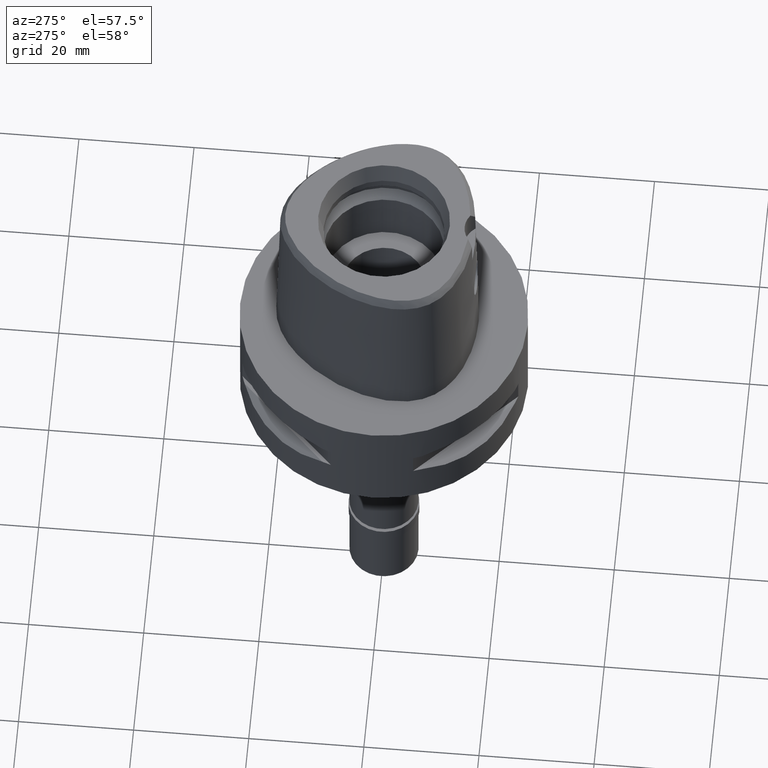
[diagram: clean part render]
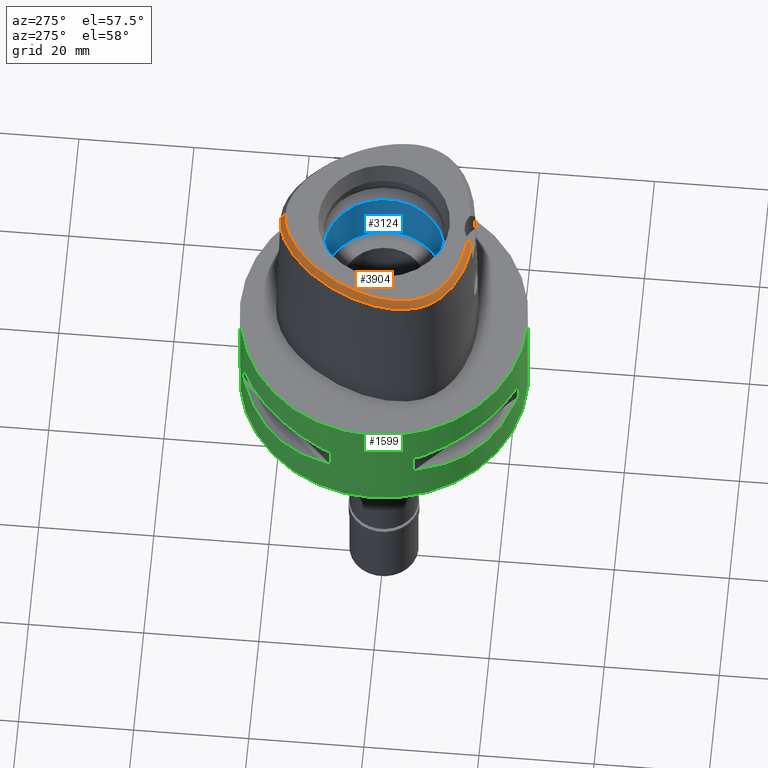
[diagram: same view with three faces highlighted in distinct colors, each labeled with its STEP entity id]
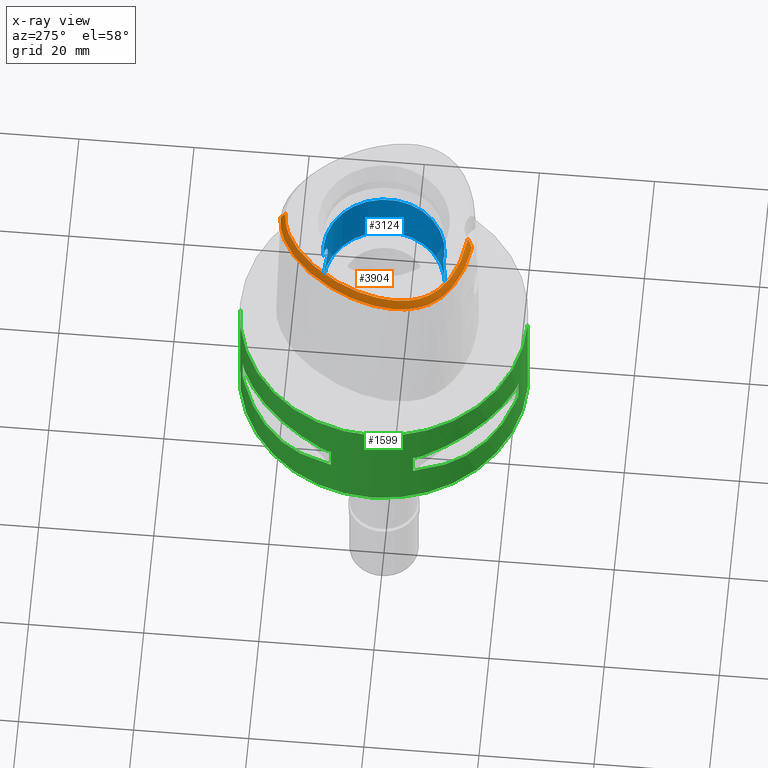
[diagram: x-ray of the same camera — body ghosted, the three highlighted faces saturated]
A machine part, auxiliary view with three faces highlighted in distinct colors.
The next image is the same camera in x-ray (body ghosted, the three faces saturated) — at least one of them is partly hidden behind the body in this view.
Their STEP definitions:

[orange] entity #3904 — the highlighted face is a freeform B-spline surface patch.
#34 = CARTESIAN_POINT ( 'NONE',  ( -16.12032640190999899, -8.078685938186000115, 28.39131416740999825 ) ) ;
#57 = CARTESIAN_POINT ( 'NONE',  ( -15.22572142673999807, -7.692347136651999762, 30.12933897799999983 ) ) ;
#80 = CARTESIAN_POINT ( 'NONE',  ( -14.52715316954000180, -10.07237294271999950, 28.97065586734000320 ) ) ;
#94 = CARTESIAN_POINT ( 'NONE',  ( -7.210776916382999779, 14.97556526619000117, 28.97065514384999929 ) ) ;
#105 = CARTESIAN_POINT ( 'NONE',  ( -14.70130602189000157, -8.706919100323000649, 30.12933899757999967 ) ) ;
#117 = CARTESIAN_POINT ( 'NONE',  ( -0.5855389863231000858, 17.39182595605999992, 29.54999721224000098 ) ) ;
#131 = CARTESIAN_POINT ( 'NONE',  ( -15.55426438942000011, -8.514730462713000492, 28.97065531125999982 ) ) ;
#143 = CARTESIAN_POINT ( 'NONE',  ( -0.04067233802848999741, 17.08601230993000186, 30.12933898580000047 ) ) ;
#165 = CARTESIAN_POINT ( 'NONE',  ( 0.3384146344178000088, 18.04989918820999861, 28.39131382383000357 ) ) ;
#185 = CARTESIAN_POINT ( 'NONE',  ( -9.420854217684404119, 12.20577134109497486, 29.99999999999504396 ) ) ;
#188 = CARTESIAN_POINT ( 'NONE',  ( -8.730921361723998686, 13.25695508305000025, 29.54999799204999889 ) ) ;
#199 = CARTESIAN_POINT ( 'NONE',  ( -3.229242511752000055, -15.63080254525999990, 28.39131442652000104 ) ) ;
#210 = CARTESIAN_POINT ( 'NONE',  ( -16.08550869466934330, -4.376322360226213348, 30.00000000000092726 ) ) ;
#214 = CARTESIAN_POINT ( 'NONE',  ( -12.90266119977999892, 7.999495185384000173, 29.54999727458000081 ) ) ;
#234 = CARTESIAN_POINT ( 'NONE',  ( -12.67444319138999909, 9.565036476980999680, 28.39131505705999814 ) ) ;
#265 = CARTESIAN_POINT ( 'NONE',  ( -15.32749402285000073, 1.635432280846000008, 30.12933872709999861 ) ) ;
#290 = CARTESIAN_POINT ( 'NONE',  ( -14.95238416923000102, 2.843721163697999543, 30.12933900671000131 ) ) ;
#313 = CARTESIAN_POINT ( 'NONE',  ( -16.05293619772000113, -3.534758618674999742, 30.12933898812000066 ) ) ;
#344 = CARTESIAN_POINT ( 'NONE',  ( -15.80202544091000050, -5.857297959473999782, 30.12933902314999912 ) ) ;
#372 = CARTESIAN_POINT ( 'NONE',  ( -14.26907056455178591, -10.79012254419424899, 28.52071192347005280 ) ) ;
#386 = EDGE_CURVE ( 'NONE', #3551, #4311, #1192, .T. ) ;
#407 = CARTESIAN_POINT ( 'NONE',  ( -12.57079690261000060, -12.32580393350000136, 28.39131460490999714 ) ) ;
#433 = CARTESIAN_POINT ( 'NONE',  ( -15.82212474351999809, -7.949906337674998547, 28.97065577094000233 ) ) ;
#455 = CARTESIAN_POINT ( 'NONE',  ( -16.36676432786000035, -7.450997352851000066, 28.39131406637000055 ) ) ;
#466 = CARTESIAN_POINT ( 'NONE',  ( -9.604637704253999431, 12.37852618135000071, 29.54999777164999841 ) ) ;
#475 = CARTESIAN_POINT ( 'NONE',  ( -10.87578136276999885, -13.00428664232999942, 28.97065548707000104 ) ) ;
#489 = CARTESIAN_POINT ( 'NONE',  ( -1.757973948115000073, 16.90099430289000182, 30.12933898137000099 ) ) ;
#498 = CARTESIAN_POINT ( 'NONE',  ( -9.023949897772000739, -13.87263361849000098, 28.97065554743000249 ) ) ;
#505 = CARTESIAN_POINT ( 'NONE',  ( -3.123276563984411336, -14.73562494724896332, 30.00000000000137490 ) ) ;
#508 = CARTESIAN_POINT ( 'NONE',  ( -0.5679008307149101542, 17.14013367087451556, 29.99999999999934985 ) ) ;
#509 = CARTESIAN_POINT ( 'NONE',  ( -3.871121011811000212, 16.56746287676000051, 29.54999753447999922 ) ) ;
#536 = CARTESIAN_POINT ( 'NONE',  ( -0.04523626578811999754, 18.06034390669000089, 28.39131407054000178 ) ) ;
#545 = B_SPLINE_CURVE_WITH_KNOTS ( 'NONE', 3,
 ( #2763, #3517, #3445, #855 ),
 .UNSPECIFIED., .F., .F.,
 ( 4, 4 ),
 ( 0.0000000000000000000, 1.000000000000000000 ),
 .UNSPECIFIED. ) ;
#557 = CARTESIAN_POINT ( 'NONE',  ( -10.27907733181908512, 11.24278573582384944, 29.99999999999005595 ) ) ;
#560 = CARTESIAN_POINT ( 'NONE',  ( -3.269458361608000185, 17.14981620864000078, 28.97065489169999708 ) ) ;
#574 = CARTESIAN_POINT ( 'NONE',  ( -2.369477536655999916, -14.73670693372999985, 30.12933893493000070 ) ) ;
#583 = CARTESIAN_POINT ( 'NONE',  ( -9.750168658358797202, -12.92810664733774395, 29.99999999999974065 ) ) ;
#585 = CARTESIAN_POINT ( 'NONE',  ( -7.700642921100591565, 13.84415306341681884, 29.99999999999863576 ) ) ;
#586 = CARTESIAN_POINT ( 'NONE',  ( -13.89387176732999940, 6.906433503657999573, 28.97065577005999870 ) ) ;
#607 = CARTESIAN_POINT ( 'NONE',  ( -2.411640998824980286, 16.81591728051114032, 29.99999999999739941 ) ) ;
#608 = CARTESIAN_POINT ( 'NONE',  ( -16.98463338979999904, -4.446094558498999483, 28.39131479093999744 ) ) ;
#628 = CARTESIAN_POINT ( 'NONE',  ( -11.06115077830000004, 10.14747851883999985, 30.12933894825999914 ) ) ;
#655 = CARTESIAN_POINT ( 'NONE',  ( -16.79210512036000225, -0.4704853413815000551, 28.39131486063000054 ) ) ;
#680 = CARTESIAN_POINT ( 'NONE',  ( -17.02712791723999786, -3.549787707974999762, 28.39131404164999850 ) ) ;
#699 = CARTESIAN_POINT ( 'NONE',  ( -15.75415822204000094, -7.234815533102000096, 29.54999734620999874 ) ) ;
#706 = CARTESIAN_POINT ( 'NONE',  ( -1.893775706186628049, 17.84807082154121716, 28.52071192347005280 ) ) ;
#731 = CARTESIAN_POINT ( 'NONE',  ( -13.06460239552742308, -11.91950051571652125, 28.52071192347005280 ) ) ;
#784 = CARTESIAN_POINT ( 'NONE',  ( -7.753731608324000213, -13.64787906105000026, 30.12933874960999958 ) ) ;
#794 = EDGE_CURVE ( 'NONE', #3551, #4007, #545, .T. ) ;
#809 = CARTESIAN_POINT ( 'NONE',  ( -9.995030356246999759, -13.45057995865999878, 28.97065537175999950 ) ) ;
#832 = CARTESIAN_POINT ( 'NONE',  ( -14.02440546493999918, -9.660947388238000144, 30.12933896588999971 ) ) ;
#845 = CARTESIAN_POINT ( 'NONE',  ( -1.195098375086000031, 17.32849314371000204, 29.54999719438000128 ) ) ;
#852 = CARTESIAN_POINT ( 'NONE',  ( -5.491032491466000032, -14.60364377619000109, 29.54999757702000096 ) ) ;
#855 = CARTESIAN_POINT ( 'NONE',  ( -3.168920966622999824, -15.55911077538999976, 28.52071192346999950 ) ) ;
#868 = CARTESIAN_POINT ( 'NONE',  ( 0.4773356910091000049, 17.39271528999999816, 29.54999718224999938 ) ) ;
#879 = CARTESIAN_POINT ( 'NONE',  ( -15.25597616872000017, -9.045164448268000257, 28.97065561519999832 ) ) ;
#887 = CARTESIAN_POINT ( 'NONE',  ( -2.535517866335988302, -14.79323888261822439, 29.99999999999904077 ) ) ;
#889 = VECTOR ( 'NONE', #2634, 1000.000000000000000 ) ;
#890 = CARTESIAN_POINT ( 'NONE',  ( -8.556928701964659822, 13.07433695898526693, 30.00000000000046185 ) ) ;
#891 = CARTESIAN_POINT ( 'NONE',  ( -0.04219364728170000439, 17.41078950885000154, 29.54999734737999617 ) ) ;
#914 = CARTESIAN_POINT ( 'NONE',  ( -11.11900396222782739, 10.19116357425899366, 29.99999999999820588 ) ) ;
#917 = CARTESIAN_POINT ( 'NONE',  ( -7.864109156437000259, 14.03625866057000060, 29.54999742380999805 ) ) ;
#931 = CARTESIAN_POINT ( 'NONE',  ( -4.139066245435000013, -14.52758570793999837, 30.12933905208999974 ) ) ;
#943 = CARTESIAN_POINT ( 'NONE',  ( -7.776737509122965797, -13.71663015822122667, 30.00000000000407852 ) ) ;
#946 = CARTESIAN_POINT ( 'NONE',  ( -9.368031485149000304, 12.15611844304999956, 30.12933886385000193 ) ) ;
#971 = CARTESIAN_POINT ( 'NONE',  ( -13.18915979441887565, -10.65722997876878608, 29.99999999999608491 ) ) ;
#973 = CARTESIAN_POINT ( 'NONE',  ( -6.862723739079807928, 14.51536572208420672, 30.00000000000309441 ) ) ;
#974 = CARTESIAN_POINT ( 'NONE',  ( -13.60712712011000036, 6.754059460247000324, 29.54999737409000105 ) ) ;
#996 = CARTESIAN_POINT ( 'NONE',  ( -16.56997526332000348, 0.6855378431177000520, 28.39131772905000162 ) ) ;
#1019 = CARTESIAN_POINT ( 'NONE',  ( -16.29171199303999629, -1.630209899415999919, 29.54999711928999773 ) ) ;
#1050 = CARTESIAN_POINT ( 'NONE',  ( -14.18061641453999933, 7.058807547068999710, 28.39131416602999991 ) ) ;
#1075 = CARTESIAN_POINT ( 'NONE',  ( -16.47163306572000252, -0.5229796053333000128, 28.97065621451000084 ) ) ;
#1080 = CARTESIAN_POINT ( 'NONE',  ( -8.702202515497454272, -14.36510996956265274, 28.52071192347005280 ) ) ;
#1128 = CARTESIAN_POINT ( 'NONE',  ( -11.33338053121734568, -13.08225253590195436, 28.52071192347005280 ) ) ;
#1160 = CARTESIAN_POINT ( 'NONE',  ( -9.857215848043999529, -13.15651844120000113, 29.54999719995999641 ) ) ;
#1180 = CARTESIAN_POINT ( 'NONE',  ( -10.13284486444999999, -13.74464147612999909, 28.39131354355999903 ) ) ;
#1192 = B_SPLINE_CURVE_WITH_KNOTS ( 'NONE', 3,
 ( #3795, #887, #505, #2402, #3037, #4532, #943, #3947, #583, #4332, #2082, #4670, #2427, #971, #3916, #4302, #3160, #4644, #3182, #1313, #2455, #1683, #3578, #1337, #210, #3209, #2845, #1287, #2793, #2816, #1712, #4691, #2478, #1661, #4280, #2054, #3552, #914, #557, #185, #890, #585, #973, #3893, #1663, #1290, #2796, #3162, #607, #4282, #2105, #508, #2818, #4723 ),
 .UNSPECIFIED., .F., .F.,
 ( 4, 1, 1, 1, 1, 1, 1, 1, 1, 1, 1, 1, 1, 1, 1, 1, 1, 1, 1, 1, 1, 1, 1, 1, 1, 1, 1, 1, 1, 1, 1, 1, 1, 1, 1, 1, 1, 1, 1, 1, 1, 1, 1, 1, 1, 1, 1, 1, 1, 1, 1, 4 ),
 ( 0.0000000000000000000, 0.005566907331700066131, 0.02545556918509994659, 0.04534423103860008020, 0.06523289289190004059, 0.08512155474529992105, 0.1050102165987000236, 0.1248988784521999351, 0.1447875403055000065, 0.1646762021588999980, 0.1845648640122999895, 0.2044535258655999499, 0.2243421877191000835, 0.2442308495724999640, 0.2641195114257999244, 0.2840081732792000269, 0.3038968351325999073, 0.3237854969860000098, 0.3436741588394000013, 0.3635628206927999928, 0.3834514825461999843, 0.4033401443995000557, 0.4232288062529999673, 0.4431174681064000698, 0.4630061299597000302, 0.4828947918130999106, 0.5027834536666000442, 0.5226721155199000046, 0.5425607773732999961, 0.5624494392267000986, 0.5823381010799999480, 0.6022267629334999706, 0.6221154247869000731, 0.6420040866403000646, 0.6618927484936000250, 0.6817814103470000164, 0.7016700722005000390, 0.7215587340537999994, 0.7414473959071999909, 0.7613360577605999824, 0.7812247196139999739, 0.8011133814673999654, 0.8210020433207999568, 0.8408907051741000283, 0.8607793670275000197, 0.8806680288810000423, 0.9005566907343299787, 0.9204453525877199782, 0.9403340144411099777, 0.9602226762944999772, 0.9801113381478899766, 1.000000000000000000 ),
 .UNSPECIFIED. ) ;
#1206 = CARTESIAN_POINT ( 'NONE',  ( -14.08424384962999909, -10.57839346256000113, 28.97065549168999965 ) ) ;
#1220 = CARTESIAN_POINT ( 'NONE',  ( -4.612262649440999951, 16.22338921105999887, 29.54999869230999821 ) ) ;
#1230 = CARTESIAN_POINT ( 'NONE',  ( -6.802526515048000100, -14.61642940643000088, 28.97065803897000080 ) ) ;
#1241 = CARTESIAN_POINT ( 'NONE',  ( -5.385105150339999369, 15.80431596828000096, 29.54999904522000165 ) ) ;
#1252 = CARTESIAN_POINT ( 'NONE',  ( -11.66954115635000022, -12.53983052482999838, 28.97065592854999849 ) ) ;
#1265 = EDGE_CURVE ( 'NONE', #4285, #4311, #4846, .T. ) ;
#1269 = CARTESIAN_POINT ( 'NONE',  ( -4.758515831108999450, 16.51336989213000095, 28.97065878539000039 ) ) ;
#1280 = CARTESIAN_POINT ( 'NONE',  ( -2.398365869910999759, -15.05999926378999909, 29.54999752436000193 ) ) ;
#1287 = CARTESIAN_POINT ( 'NONE',  ( -16.04083576397475852, -1.656498942828992682, 29.99999999999473133 ) ) ;
#1290 = CARTESIAN_POINT ( 'NONE',  ( -4.498660734198344002, 15.99814720005820767, 29.99999999999869971 ) ) ;
#1291 = EDGE_CURVE ( 'NONE', #4007, #4285, #4822, .T. ) ;
#1292 = CARTESIAN_POINT ( 'NONE',  ( -6.187456709968000013, 15.30378517703000085, 29.54999834022000371 ) ) ;
#1304 = CARTESIAN_POINT ( 'NONE',  ( -2.105264496099000127, -15.08383859391000215, 29.54999752696999948 ) ) ;
#1313 = CARTESIAN_POINT ( 'NONE',  ( -15.29229544369668758, -7.721097396977326888, 29.99999999998976108 ) ) ;
#1316 = CARTESIAN_POINT ( 'NONE',  ( -6.818990223142999518, 14.45754081081000031, 30.12933905681000368 ) ) ;
#1337 = CARTESIAN_POINT ( 'NONE',  ( -15.99949242929705306, -5.153835065648810776, 30.00000000000128964 ) ) ;
#1340 = CARTESIAN_POINT ( 'NONE',  ( -16.04041083187000183, -2.633185569846999918, 30.12933900961000333 ) ) ;
#1366 = CARTESIAN_POINT ( 'NONE',  ( -13.45929895405000032, 8.334032602907999632, 28.39131381031000245 ) ) ;
#1392 = CARTESIAN_POINT ( 'NONE',  ( -15.09420339793999943, 4.327833566528000553, 28.97065542281000106 ) ) ;
#1417 = CARTESIAN_POINT ( 'NONE',  ( -12.40531257934999942, 9.383352031152998762, 28.97065634020000147 ) ) ;
#1441 = CARTESIAN_POINT ( 'NONE',  ( -16.26523621979999845, 1.899399732945000085, 28.39131728818999889 ) ) ;
#1446 = CARTESIAN_POINT ( 'NONE',  ( -10.91764528035567849, 11.98972044748084542, 28.52071192347005280 ) ) ;
#1463 = CARTESIAN_POINT ( 'NONE',  ( -15.64080128263000269, -6.516830390666999762, 30.12933901494000111 ) ) ;
#1490 = CARTESIAN_POINT ( 'NONE',  ( -16.79165457291478702, -0.3537785057483261442, 28.52071192347005280 ) ) ;
#1526 = CARTESIAN_POINT ( 'NONE',  ( -14.65187942024999934, -9.372691611598000350, 29.54999723909000053 ) ) ;
#1552 = CARTESIAN_POINT ( 'NONE',  ( -7.856780787036998781, -13.95583240576000073, 29.54999816915999844 ) ) ;
#1576 = CARTESIAN_POINT ( 'NONE',  ( -11.84178462271000143, -12.81516520849000074, 28.39131441372999731 ) ) ;
#1590 = CARTESIAN_POINT ( 'NONE',  ( -7.406670263001998933, 15.23457749386999893, 28.39131318737999976 ) ) ;
#1600 = CARTESIAN_POINT ( 'NONE',  ( -9.144374591708000821, -14.17422531543000019, 28.39131381810000221 ) ) ;
#1614 = CARTESIAN_POINT ( 'NONE',  ( 0.3144436683223000295, 17.40110467407000172, 29.54999727835999934 ) ) ;
#1625 = CARTESIAN_POINT ( 'NONE',  ( -15.53331124212999903, -9.214287122240000016, 28.39131392400999943 ) ) ;
#1638 = CARTESIAN_POINT ( 'NONE',  ( -0.5628313024529999486, 17.06779270863999898, 30.12933902464000013 ) ) ;
#1648 = CARTESIAN_POINT ( 'NONE',  ( -4.190263392647999297, -14.84824554995000057, 29.54999711673999840 ) ) ;
#1661 = CARTESIAN_POINT ( 'NONE',  ( -14.01158736113475989, 5.375902008631216589, 29.99999999999225508 ) ) ;
#1663 = CARTESIAN_POINT ( 'NONE',  ( -5.257871200567610259, 15.58649213537279365, 30.00000000000070344 ) ) ;
#1664 = CARTESIAN_POINT ( 'NONE',  ( -0.6309543540634999781, 18.03989245089999827, 28.39131358746000089 ) ) ;
#1683 = CARTESIAN_POINT ( 'NONE',  ( -15.71065119879248861, -6.536303815289661756, 29.99999999999054623 ) ) ;
#1687 = CARTESIAN_POINT ( 'NONE',  ( -3.053017631463999848, 16.53734507408000098, 30.12933908849000275 ) ) ;
#1702 = CARTESIAN_POINT ( 'NONE',  ( -5.627901505685000139, -15.23850856314000168, 28.39131489147000309 ) ) ;
#1712 = CARTESIAN_POINT ( 'NONE',  ( -15.39727819201294423, 1.655076005305240461, 30.00000000000008171 ) ) ;
#1715 = CARTESIAN_POINT ( 'NONE',  ( -16.61469463490999843, -1.596364904514999905, 28.97065518721999666 ) ) ;
#1725 = CARTESIAN_POINT ( 'NONE',  ( -3.191080627774999900, -15.30841913480000116, 28.97065593673999828 ) ) ;
#1738 = CARTESIAN_POINT ( 'NONE',  ( -16.25299181263000037, 0.6150088963461999292, 28.97065804991999727 ) ) ;
#1764 = ORIENTED_EDGE ( 'NONE', *, *, #1291, .F. ) ;
#1768 = CARTESIAN_POINT ( 'NONE',  ( -10.72026393187000082, 11.61457269952000004, 28.97065520764000013 ) ) ;
#1796 = CARTESIAN_POINT ( 'NONE',  ( -10.22364143160999994, 11.19607002638000104, 30.12933904878000391 ) ) ;
#1820 = CARTESIAN_POINT ( 'NONE',  ( -13.18098007691000184, 8.166763894145999458, 28.97065554243999941 ) ) ;
#1826 = CARTESIAN_POINT ( 'NONE',  ( -13.75951393052746496, 7.944084103042573730, 28.52071192347005280 ) ) ;
#1846 = CARTESIAN_POINT ( 'NONE',  ( -16.06046127494999709, -7.342906442976999237, 28.97065570628999964 ) ) ;
#1872 = CARTESIAN_POINT ( 'NONE',  ( -16.85489160761262184, -5.354527567564943524, 28.52071192347005280 ) ) ;
#1906 = CARTESIAN_POINT ( 'NONE',  ( -13.80437769679000048, -11.31670849274000012, 28.39131366040000160 ) ) ;
#1932 = CARTESIAN_POINT ( 'NONE',  ( -12.60619176004999886, -11.07120982479000126, 30.12933901918000146 ) ) ;
#1954 = CARTESIAN_POINT ( 'NONE',  ( -15.26566713823000043, -8.365641472955001490, 29.54999717351999777 ) ) ;
#1964 = CARTESIAN_POINT ( 'NONE',  ( -9.841243923357998469, 12.60093391965000009, 28.97065667944999845 ) ) ;
#1974 = CARTESIAN_POINT ( 'NONE',  ( -12.00349333405000074, -11.53364585042000101, 30.12933894284000047 ) ) ;
#1986 = CARTESIAN_POINT ( 'NONE',  ( -3.743395550206000344, 16.26884650738999838, 30.12933893201000046 ) ) ;
#1996 = CARTESIAN_POINT ( 'NONE',  ( -5.559466998576000130, -14.92107616966999828, 28.97065623423999980 ) ) ;
#2010 = CARTESIAN_POINT ( 'NONE',  ( -8.074558575022999563, 14.28357891691000070, 28.97065588380000278 ) ) ;
#2021 = CARTESIAN_POINT ( 'NONE',  ( -2.427254203164999957, -15.38329159383999922, 28.97065611378999961 ) ) ;
#2032 = CARTESIAN_POINT ( 'NONE',  ( -1.240089679291000113, 17.65018169308999774, 28.97065535898999755 ) ) ;
#2054 = CARTESIAN_POINT ( 'NONE',  ( -12.68647747557120908, 7.869569494475526561, 29.99999999999737099 ) ) ;
#2057 = CARTESIAN_POINT ( 'NONE',  ( -8.506920031974001262, 13.02184917293000055, 30.12933880050999846 ) ) ;
#2069 = CARTESIAN_POINT ( 'NONE',  ( -1.919079076642000059, -14.77185826614999975, 30.12933893585999812 ) ) ;
#2082 = CARTESIAN_POINT ( 'NONE',  ( -11.36350786442240945, -12.05063008428595772, 29.99999999999426592 ) ) ;
#2086 = CARTESIAN_POINT ( 'NONE',  ( -11.32028964627000001, 10.34315479868999965, 29.54999747797999987 ) ) ;
#2105 = CARTESIAN_POINT ( 'NONE',  ( -1.160151454488572487, 17.07862209883076687, 29.99999999999663913 ) ) ;
#2107 = CARTESIAN_POINT ( 'NONE',  ( -16.66082849757000162, -4.420967254950999958, 28.97065616991999804 ) ) ;
#2116 = CARTESIAN_POINT ( 'NONE',  ( -2.406542353497000075, -14.80491723099000012, 30.00000000000000000 ) ) ;
#2119 = CARTESIAN_POINT ( 'NONE',  ( -2.130583474834999880, -15.40742109763000123, 28.97065611977000188 ) ) ;
#2133 = CARTESIAN_POINT ( 'NONE',  ( -13.32038247288999955, 6.601685416834999209, 30.12933897811999984 ) ) ;
#2161 = CARTESIAN_POINT ( 'NONE',  ( -16.68926593497999633, -2.603818128556000033, 28.97065551945000195 ) ) ;
#2172 = CARTESIAN_POINT ( 'NONE',  ( -3.168920966622999824, -15.55911077538999976, 28.52071192346999950 ) ) ;
#2184 = CARTESIAN_POINT ( 'NONE',  ( -14.82899453719999983, 5.756466548847000375, 28.39131478894999816 ) ) ;
#2208 = CARTESIAN_POINT ( 'NONE',  ( -16.57942697131000287, -6.778509396191999770, 28.39131370796999931 ) ) ;
#2239 = CARTESIAN_POINT ( 'NONE',  ( -3.168920966622999824, -15.55911077538999976, 28.52071192346999950 ) ) ;
#2246 = CARTESIAN_POINT ( 'NONE',  ( -2.866356467587000151E-11, 17.98202997909999823, 28.52071728569000086 ) ) ;
#2295 = CARTESIAN_POINT ( 'NONE',  ( -13.13969603143000064, -10.60420764508000069, 30.12933901877000054 ) ) ;
#2315 = CARTESIAN_POINT ( 'NONE',  ( -6.716817607405000778, -14.30321382752000048, 29.54999836600000052 ) ) ;
#2341 = CARTESIAN_POINT ( 'NONE',  ( -13.58281714166999876, -11.07920821018000090, 28.97065544651999858 ) ) ;
#2353 = CARTESIAN_POINT ( 'NONE',  ( 0.4952307376230999925, 17.71677170343000185, 28.97065533124999703 ) ) ;
#2365 = CARTESIAN_POINT ( 'NONE',  ( -15.84286164062000068, -8.663819452471001270, 28.39131344900999920 ) ) ;
#2382 = CARTESIAN_POINT ( 'NONE',  ( -2.655663443307000104, 17.68417549140000133, 28.39131361516000140 ) ) ;
#2392 = CARTESIAN_POINT ( 'NONE',  ( -11.03087913798000130, -13.28962069075000052, 28.39131372377000062 ) ) ;
#2402 = CARTESIAN_POINT ( 'NONE',  ( -4.150496093830525979, -14.59917355179894649, 30.00000000000056133 ) ) ;
#2406 = CARTESIAN_POINT ( 'NONE',  ( -2.479902146202999980, 17.05879781480000190, 29.54999721999000073 ) ) ;
#2416 = CARTESIAN_POINT ( 'NONE',  ( -3.152918743798999834, -14.98603572432999975, 29.54999744695999908 ) ) ;
#2427 = CARTESIAN_POINT ( 'NONE',  ( -12.65209017756193965, -11.12734424253546450, 29.99999999999976552 ) ) ;
#2430 = CARTESIAN_POINT ( 'NONE',  ( -6.007108428045999204, 15.03370872444000028, 30.12933870043999818 ) ) ;
#2455 = CARTESIAN_POINT ( 'NONE',  ( -15.51623783590795291, -7.150856098906022140, 29.99999999999563371 ) ) ;
#2458 = CARTESIAN_POINT ( 'NONE',  ( 0.4594406443951999930, 17.06865887657000158, 30.12933903325000173 ) ) ;
#2478 = CARTESIAN_POINT ( 'NONE',  ( -14.55898035934198909, 4.112421202110860818, 29.99999999999583622 ) ) ;
#2482 = CARTESIAN_POINT ( 'NONE',  ( -16.70239734405999954, -3.544778011541000140, 28.97065569047000011 ) ) ;
#2502 = CARTESIAN_POINT ( 'NONE',  ( -16.57084182753000334, -5.234868421845000341, 28.97065558783000228 ) ) ;
#2527 = CARTESIAN_POINT ( 'NONE',  ( -16.93767727676999968, -1.562519909613999891, 28.39131325514999915 ) ) ;
#2554 = CARTESIAN_POINT ( 'NONE',  ( -16.37766677088999856, -3.539768315108000163, 29.54999733929999906 ) ) ;
#2581 = CARTESIAN_POINT ( 'NONE',  ( -16.26655174174999985, -6.691283061016999767, 28.97065547696000110 ) ) ;
#2587 = CARTESIAN_POINT ( 'NONE',  ( -2.866356467587000151E-11, 17.98202997909999823, 28.52071728569000086 ) ) ;
#2607 = ORIENTED_EDGE ( 'NONE', *, *, #1265, .F. ) ;
#2609 = CARTESIAN_POINT ( 'NONE',  ( -16.01658395503334376, -8.155509241190134873, 28.52071192347005280 ) ) ;
#2634 = DIRECTION ( 'NONE',  ( -2.026170529251034668E-11, -0.4887572537803078765, 0.8724198226067148010 ) ) ;
#2665 = CARTESIAN_POINT ( 'NONE',  ( -13.84737583065999900, -10.35614396995999975, 29.54999725238999986 ) ) ;
#2692 = CARTESIAN_POINT ( 'NONE',  ( -14.32111186859000007, -10.80064295515999895, 28.39131373098999944 ) ) ;
#2712 = CARTESIAN_POINT ( 'NONE',  ( -12.38169571309000005, -12.06175123913999947, 28.97065605088000240 ) ) ;
#2726 = CARTESIAN_POINT ( 'NONE',  ( -4.904769012775999748, 16.80335057319999947, 28.39131887845999813 ) ) ;
#2735 = CARTESIAN_POINT ( 'NONE',  ( -6.888235422691000309, -14.92964498533000040, 28.39131771194000109 ) ) ;
#2749 = CARTESIAN_POINT ( 'NONE',  ( -5.548908462374000372, 16.08474635131999975, 28.97065959262999968 ) ) ;
#2759 = CARTESIAN_POINT ( 'NONE',  ( -14.27577931724000138, -9.866660165480999112, 29.54999741662000190 ) ) ;
#2763 = CARTESIAN_POINT ( 'NONE',  ( -2.406542353497000075, -14.80491723099000012, 30.00000000000000000 ) ) ;
#2774 = CARTESIAN_POINT ( 'NONE',  ( 0.3264291513700999792, 17.72550193113999839, 28.97065555109000101 ) ) ;
#2793 = CARTESIAN_POINT ( 'NONE',  ( -15.90223487643802791, -0.6162487013688002779, 29.99999999999454303 ) ) ;
#2796 = CARTESIAN_POINT ( 'NONE',  ( -3.771910472264452530, 16.33551310926392830, 29.99999999998960831 ) ) ;
#2797 = CARTESIAN_POINT ( 'NONE',  ( -7.653659737851000067, 13.78893840421999961, 30.12933896383000132 ) ) ;
#2816 = CARTESIAN_POINT ( 'NONE',  ( -15.68979199461307061, 0.4896967076515691408, 29.99999999999590372 ) ) ;
#2818 = CARTESIAN_POINT ( 'NONE',  ( -0.1909045559979831996, 17.15328888648182115, 30.00000000000018119 ) ) ;
#2819 = CARTESIAN_POINT ( 'NONE',  ( -8.954922691473001350, 13.49206099316000085, 28.97065718359000286 ) ) ;
#2840 = ORIENTED_EDGE ( 'NONE', *, *, #386, .T. ) ;
#2845 = CARTESIAN_POINT ( 'NONE',  ( -16.11283982316178154, -2.629907404753797806, 29.99999999999849010 ) ) ;
#2848 = CARTESIAN_POINT ( 'NONE',  ( -17.01369348652999847, -2.589134407911000135, 28.39131377437000125 ) ) ;
#2859 = CARTESIAN_POINT ( 'NONE',  ( -2.456142536420000244, -15.70658392389999847, 28.39131470322999817 ) ) ;
#2871 = CARTESIAN_POINT ( 'NONE',  ( -14.24024317938000017, 5.482358495539999765, 29.54999754833999859 ) ) ;
#2896 = CARTESIAN_POINT ( 'NONE',  ( -15.56702618821999984, 3.053477201902999649, 28.97065554255000208 ) ) ;
#2919 = CARTESIAN_POINT ( 'NONE',  ( -15.96872935117999859, -1.664054894316999933, 30.12933905135000145 ) ) ;
#2943 = CARTESIAN_POINT ( 'NONE',  ( -13.94586750047000123, 5.345304468886999949, 30.12933892802999836 ) ) ;
#2949 = CARTESIAN_POINT ( 'NONE',  ( -3.738627773283101696, -15.49270868799859358, 28.52071192347005280 ) ) ;
#2964 = CARTESIAN_POINT ( 'NONE',  ( -16.75586695602000020, -6.056368517675000618, 28.39131360599999709 ) ) ;
#2991 = CARTESIAN_POINT ( 'NONE',  ( -15.84228689413422231, 3.460033471611971834, 28.52071192347005280 ) ) ;
#3025 = CARTESIAN_POINT ( 'NONE',  ( -13.36125658655000059, -10.84170792763000080, 29.54999723265000000 ) ) ;
#3037 = CARTESIAN_POINT ( 'NONE',  ( -5.437876102061184547, -14.35707869330859054, 30.00000000000263611 ) ) ;
#3048 = CARTESIAN_POINT ( 'NONE',  ( -8.062879144460998404, -14.57173909518000166, 28.39131700825999971 ) ) ;
#3069 = CARTESIAN_POINT ( 'NONE',  ( -8.903525203835998880, -13.57104192155000000, 29.54999727676000276 ) ) ;
#3082 = CARTESIAN_POINT ( 'NONE',  ( -1.150107070882000038, 17.00680459434000014, 30.12933902977000145 ) ) ;
#3093 = CARTESIAN_POINT ( 'NONE',  ( -12.19259452357000129, -11.79769854477999935, 29.54999749685999788 ) ) ;
#3106 = CARTESIAN_POINT ( 'NONE',  ( -0.6082466701933000319, 17.71585920348000087, 28.97065539984999916 ) ) ;
#3116 = CARTESIAN_POINT ( 'NONE',  ( -14.97864109530999954, -8.876041774295000408, 29.54999730638999722 ) ) ;
#3130 = CARTESIAN_POINT ( 'NONE',  ( -2.392021497651000139, 16.74610897651000130, 30.12933902241000084 ) ) ;
#3160 = CARTESIAN_POINT ( 'NONE',  ( -14.44611813752641893, -9.226676124712433591, 29.99999999998939160 ) ) ;
#3162 = CARTESIAN_POINT ( 'NONE',  ( -3.077178008231387984, 16.60571267457864053, 30.00000000000128964 ) ) ;
#3163 = CARTESIAN_POINT ( 'NONE',  ( -4.466009467773999653, 15.93340852998000123, 30.12933859924000046 ) ) ;
#3182 = CARTESIAN_POINT ( 'NONE',  ( -15.04149970408309223, -8.249836848500521569, 29.99999999999993605 ) ) ;
#3186 = CARTESIAN_POINT ( 'NONE',  ( -3.377678726679999688, 17.45605177592000246, 28.39131279331000002 ) ) ;
#3198 = CARTESIAN_POINT ( 'NONE',  ( -1.989110403089999757, -15.74303306578000239, 28.39131469151999809 ) ) ;
#3209 = CARTESIAN_POINT ( 'NONE',  ( -16.12543283909113256, -3.535877041748430649, 29.99999999999853983 ) ) ;
#3212 = CARTESIAN_POINT ( 'NONE',  ( -10.47195268174000127, 11.40532136294999965, 29.54999712820999846 ) ) ;
#3222 = CARTESIAN_POINT ( 'NONE',  ( -2.155902453569999988, -15.73100360134000297, 28.39131471255999983 ) ) ;
#3238 = CARTESIAN_POINT ( 'NONE',  ( -16.24927158191999865, -5.189260749316000343, 29.54999729442999978 ) ) ;
#3250 = CARTESIAN_POINT ( 'NONE',  ( -4.241460539861000356, -15.16890539195999921, 28.97065518140000151 ) ) ;
#3260 = CARTESIAN_POINT ( 'NONE',  ( -10.07785014245999911, 12.82334165794000036, 28.39131558726000293 ) ) ;
#3283 = CARTESIAN_POINT ( 'NONE',  ( -11.86705135526000099, 9.019983139496000391, 30.12933890648000101 ) ) ;
#3307 = CARTESIAN_POINT ( 'NONE',  ( -14.79296600360999925, 4.206593906266999916, 29.54999722228000181 ) ) ;
#3312 = EDGE_LOOP ( 'NONE', ( #2840, #2607, #1764, #3565 ) ) ;
#3332 = CARTESIAN_POINT ( 'NONE',  ( -16.43791978432000178, -5.990011664941000014, 28.97065541171999925 ) ) ;
#3362 = CARTESIAN_POINT ( 'NONE',  ( -16.99625270562911084, -3.273868231552331753, 28.52071192347005280 ) ) ;
#3397 = CARTESIAN_POINT ( 'NONE',  ( -14.38697858475000046, -9.184708605465999653, 30.12933901691000216 ) ) ;
#3420 = CARTESIAN_POINT ( 'NONE',  ( -14.77852702184000044, -10.27808571997000087, 28.39131431807000183 ) ) ;
#3442 = CARTESIAN_POINT ( 'NONE',  ( -14.91678025573999911, -9.560674617730001046, 28.97065546127999980 ) ) ;
#3445 = CARTESIAN_POINT ( 'NONE',  ( -2.935844350031931338, -15.25651563099012442, 29.10537812850959227 ) ) ;
#3454 = CARTESIAN_POINT ( 'NONE',  ( -1.891514980014999958, 17.53674547670000194, 28.97065574420000189 ) ) ;
#3467 = CARTESIAN_POINT ( 'NONE',  ( -11.32505422365000136, -11.98916115752999900, 30.12933895820000174 ) ) ;
#3477 = CARTESIAN_POINT ( 'NONE',  ( 0.5131257842370000599, 18.04082811685999843, 28.39131348025999912 ) ) ;
#3492 = CARTESIAN_POINT ( 'NONE',  ( -13.61050781169999979, -10.13389447736000015, 30.12933901310000095 ) ) ;
#3505 = CARTESIAN_POINT ( 'NONE',  ( -2.567782794755000264, 17.37148665309999984, 28.97065541758000151 ) ) ;
#3514 = CARTESIAN_POINT ( 'NONE',  ( -2.079945517364000018, -14.76025609020000040, 30.12933893417999798 ) ) ;
#3517 = CARTESIAN_POINT ( 'NONE',  ( -2.674237912717231325, -15.00654602989130737, 29.59847415401959125 ) ) ;
#3528 = CARTESIAN_POINT ( 'NONE',  ( -3.998846473416000524, 16.86607924614000353, 28.97065613694999797 ) ) ;
#3551 = VERTEX_POINT ( 'NONE', #2116 ) ;
#3552 = CARTESIAN_POINT ( 'NONE',  ( -11.92713521269492283, 9.060544494662932991, 29.99999999999736744 ) ) ;
#3556 = FACE_OUTER_BOUND ( 'NONE', #3312, .T. ) ;
#3565 = ORIENTED_EDGE ( 'NONE', *, *, #794, .F. ) ;
#3578 = CARTESIAN_POINT ( 'NONE',  ( -15.87300767660384793, -5.872112237378931177, 30.00000000000066436 ) ) ;
#3583 = CARTESIAN_POINT ( 'NONE',  ( -15.64007475516999968, 1.723421431546000138, 29.54999824745999959 ) ) ;
#3595 = CARTESIAN_POINT ( 'NONE',  ( -1.965766627607000050, -15.41930813257000032, 28.97065610629999810 ) ) ;
#3605 = CARTESIAN_POINT ( 'NONE',  ( -15.92770133631999840, -5.143653076787000344, 30.12933900101999996 ) ) ;
#3628 = CARTESIAN_POINT ( 'NONE',  ( -15.87434719770999791, 3.158355221004999880, 28.39131381047999980 ) ) ;
#3654 = CARTESIAN_POINT ( 'NONE',  ( -15.25970517872000087, 2.948599182799999774, 29.54999727463000170 ) ) ;
#3676 = CARTESIAN_POINT ( 'NONE',  ( -15.95265548748000128, 1.811410582244999956, 28.97065776782000057 ) ) ;
#3698 = CARTESIAN_POINT ( 'NONE',  ( -16.11997261260999892, -5.923654812208000386, 29.54999721743000052 ) ) ;
#3728 = CARTESIAN_POINT ( 'NONE',  ( -16.47905549557314941, -6.962316292880237789, 28.52071192347005280 ) ) ;
#3784 = CARTESIAN_POINT ( 'NONE',  ( -14.97706988702999986, -8.216552483196000622, 30.12933903577000194 ) ) ;
#3795 = CARTESIAN_POINT ( 'NONE',  ( -2.406542353497000075, -14.80491723099000012, 30.00000000000000000 ) ) ;
#3808 = CARTESIAN_POINT ( 'NONE',  ( -15.52392308513000074, -7.821126737164001419, 29.54999737446999930 ) ) ;
#3832 = CARTESIAN_POINT ( 'NONE',  ( -10.72068358756999906, -12.71895259391000188, 29.54999725037000147 ) ) ;
#3843 = CARTESIAN_POINT ( 'NONE',  ( -1.285080983495000106, 17.97187024245999964, 28.39131352361000182 ) ) ;
#3858 = CARTESIAN_POINT ( 'NONE',  ( -9.719401339842001164, -12.86245692373999816, 30.12933902817000131 ) ) ;
#3870 = CARTESIAN_POINT ( 'NONE',  ( -7.014883569763000537, 14.71655303849999896, 29.54999710032999971 ) ) ;
#3873 = CARTESIAN_POINT ( 'NONE',  ( -2.866356467587000151E-11, 17.98202997909999823, 28.52071728569000086 ) ) ;
#3893 = CARTESIAN_POINT ( 'NONE',  ( -6.047371482395221598, 15.09400374235290343, 30.00000000000095213 ) ) ;
#3894 = CARTESIAN_POINT ( 'NONE',  ( -3.161237996535999795, 16.84358064135999911, 29.54999699010000214 ) ) ;
#3904 = ADVANCED_FACE ( 'NONE', ( #3556 ), #4597, .F. ) ;
#3906 = CARTESIAN_POINT ( 'NONE',  ( -1.942422852124999988, -15.09558319936000004, 29.54999752108000166 ) ) ;
#3916 = CARTESIAN_POINT ( 'NONE',  ( -13.66338899148929187, -10.18351204678886290, 29.99999999999923617 ) ) ;
#3919 = CARTESIAN_POINT ( 'NONE',  ( -0.04371495653491000444, 17.73556670777000122, 28.97065570895999898 ) ) ;
#3935 = CARTESIAN_POINT ( 'NONE',  ( -4.292657687074000528, -15.48956523396999962, 28.39131324606000106 ) ) ;
#3947 = CARTESIAN_POINT ( 'NONE',  ( -8.809985523415296171, -13.33678107331190787, 29.99999999999470290 ) ) ;
#3950 = CARTESIAN_POINT ( 'NONE',  ( -16.01321871310999612, -4.370712647853999044, 30.12933892787999923 ) ) ;
#3963 = CARTESIAN_POINT ( 'NONE',  ( -3.114756859821999679, -14.66365231386000190, 30.12933895717999988 ) ) ;
#3976 = CARTESIAN_POINT ( 'NONE',  ( -16.33702360534000064, -4.395839951402000345, 29.54999754889999863 ) ) ;
#3997 = CARTESIAN_POINT ( 'NONE',  ( -14.53461885829000089, 5.619412522193000470, 28.97065616863999793 ) ) ;
#4007 = VERTEX_POINT ( 'NONE', #2172 ) ;
#4024 = CARTESIAN_POINT ( 'NONE',  ( -12.62434232265000134, 7.832226476621000799, 30.12933900672000220 ) ) ;
#4051 = CARTESIAN_POINT ( 'NONE',  ( -10.96857518200000214, 11.82382403608999866, 28.39131328706000090 ) ) ;
#4074 = CARTESIAN_POINT ( 'NONE',  ( -16.89241207314000093, -5.280476094373000251, 28.39131388124000210 ) ) ;
#4080 = CARTESIAN_POINT ( 'NONE',  ( -4.422474562381206731, 17.08283562090321084, 28.52071192347005280 ) ) ;
#4103 = CARTESIAN_POINT ( 'NONE',  ( -5.902447850708569810, -15.16907854011898849, 28.52071192347005280 ) ) ;
#4132 = CARTESIAN_POINT ( 'NONE',  ( -0.6295828121029654056, 17.98203011042085109, 28.52071192347005280 ) ) ;
#4153 = CARTESIAN_POINT ( 'NONE',  ( -8.783100509899998798, -13.26945022459999812, 30.12933900609000304 ) ) ;
#4179 = CARTESIAN_POINT ( 'NONE',  ( -10.56558581236000016, -12.43361854549000078, 30.12933901367000189 ) ) ;
#4202 = CARTESIAN_POINT ( 'NONE',  ( -11.49729768999999990, -12.26449584118000047, 29.54999744338000056 ) ) ;
#4216 = CARTESIAN_POINT ( 'NONE',  ( 0.3024581852745999999, 17.07670741700000150, 30.12933900563000122 ) ) ;
#4224 = CARTESIAN_POINT ( 'NONE',  ( -5.422597984355999934, -14.28621138271000035, 30.12933891979999856 ) ) ;
#4235 = CARTESIAN_POINT ( 'NONE',  ( -5.712711774408999688, 16.36517673435999853, 28.39132014003999771 ) ) ;
#4248 = CARTESIAN_POINT ( 'NONE',  ( -13.22296320537000014, -11.82553007899999997, 28.39131365534999674 ) ) ;
#4261 = CARTESIAN_POINT ( 'NONE',  ( -1.824744464065000127, 17.21886988980000055, 29.54999736277999745 ) ) ;
#4280 = CARTESIAN_POINT ( 'NONE',  ( -13.38439869301878282, 6.635703175839537948, 29.99999999999813127 ) ) ;
#4282 = CARTESIAN_POINT ( 'NONE',  ( -1.772880577021968218, 16.97196055715992102, 29.99999999999775824 ) ) ;
#4283 = CARTESIAN_POINT ( 'NONE',  ( -8.285007993609001531, 14.53089917325999991, 28.39131434379000041 ) ) ;
#4285 = VERTEX_POINT ( 'NONE', #3873 ) ;
#4302 = CARTESIAN_POINT ( 'NONE',  ( -14.08052509618497972, -9.706873108417777729, 29.99999999999324274 ) ) ;
#4305 = CARTESIAN_POINT ( 'NONE',  ( -9.178924021223000551, 13.72716690328000055, 28.39131637512999973 ) ) ;
#4311 = VERTEX_POINT ( 'NONE', #4338 ) ;
#4332 = CARTESIAN_POINT ( 'NONE',  ( -10.60021164902527957, -12.49731984708702370, 29.99999999999084821 ) ) ;
#4335 = CARTESIAN_POINT ( 'NONE',  ( -14.49172860928000084, 4.085354246006000167, 30.12933902175000256 ) ) ;
#4338 = CARTESIAN_POINT ( 'NONE',  ( -6.301949014319000032E-11, 17.15328888647999861, 30.00000000000000000 ) ) ;
#4359 = CARTESIAN_POINT ( 'NONE',  ( -15.39544079228000051, 4.449073226789000302, 28.39131362334000031 ) ) ;
#4380 = CARTESIAN_POINT ( 'NONE',  ( -16.15116101107000190, -0.5754738692850999149, 29.54999756839000113 ) ) ;
#4409 = CARTESIAN_POINT ( 'NONE',  ( -16.36483838342999775, -2.618501849201000375, 29.54999726452999909 ) ) ;
#4436 = CARTESIAN_POINT ( 'NONE',  ( -15.83068895642000129, -0.6279681332369000391, 30.12933892226999788 ) ) ;
#4441 = CARTESIAN_POINT ( 'NONE',  ( -15.07117015427603413, -9.793013966486137534, 28.52071192347005280 ) ) ;
#4460 = CARTESIAN_POINT ( 'NONE',  ( -15.95367651219000216, -6.604056725841999764, 29.54999724595000288 ) ) ;
#4465 = CARTESIAN_POINT ( 'NONE',  ( -15.58740380353316191, -8.999391780896207393, 28.52071192347005280 ) ) ;
#4521 = CARTESIAN_POINT ( 'NONE',  ( -12.81178224182000136, -11.32264990951999906, 29.54999723124000255 ) ) ;
#4532 = CARTESIAN_POINT ( 'NONE',  ( -6.650243356160530084, -14.05992414833179183, 30.00000000000051514 ) ) ;
#4544 = CARTESIAN_POINT ( 'NONE',  ( -6.631108699762000569, -13.98999824861000008, 30.12933869303000023 ) ) ;
#4569 = CARTESIAN_POINT ( 'NONE',  ( -15.18168109123999976, -9.748657623861999966, 28.39131368345999817 ) ) ;
#4581 = CARTESIAN_POINT ( 'NONE',  ( -1.958285495965999656, 17.85462106361000068, 28.39131412561999923 ) ) ;
#4589 = CARTESIAN_POINT ( 'NONE',  ( -7.959829965748999925, -14.26378575047000119, 28.97065758871000085 ) ) ;
#4597 = B_SPLINE_SURFACE_WITH_KNOTS ( 'NONE', 3, 3, ( 
 ( #2458, #868, #2353, #3477 ),
 ( #4216, #1614, #2774, #165 ),
 ( #143, #891, #3919, #536 ),
 ( #1638, #117, #3106, #1664 ),
 ( #3082, #845, #2032, #3843 ),
 ( #489, #4261, #3454, #4581 ),
 ( #3130, #2406, #3505, #2382 ),
 ( #1687, #3894, #560, #3186 ),
 ( #1986, #509, #3528, #4623 ),
 ( #3163, #1220, #1269, #2726 ),
 ( #4601, #1241, #2749, #4235 ),
 ( #2430, #1292, #4647, #4673 ),
 ( #1316, #3870, #94, #1590 ),
 ( #2797, #917, #2010, #4283 ),
 ( #2057, #188, #2819, #4305 ),
 ( #946, #466, #1964, #3260 ),
 ( #1796, #3212, #1768, #4051 ),
 ( #628, #2086, #4724, #4748 ),
 ( #3283, #4775, #1417, #234 ),
 ( #4024, #214, #1820, #1366 ),
 ( #2133, #974, #586, #1050 ),
 ( #2943, #2871, #3997, #2184 ),
 ( #4335, #3307, #1392, #4359 ),
 ( #290, #3654, #2896, #3628 ),
 ( #265, #3583, #3676, #1441 ),
 ( #4695, #4799, #1738, #996 ),
 ( #4436, #4380, #1075, #655 ),
 ( #2919, #1019, #1715, #2527 ),
 ( #1340, #4409, #2161, #2848 ),
 ( #313, #2554, #2482, #680 ),
 ( #3950, #3976, #2107, #608 ),
 ( #3605, #3238, #2502, #4074 ),
 ( #344, #3698, #3332, #2964 ),
 ( #1463, #4460, #2581, #2208 ),
 ( #4825, #699, #1846, #455 ),
 ( #57, #3808, #433, #34 ),
 ( #3784, #1954, #131, #2365 ),
 ( #105, #3116, #879, #1625 ),
 ( #3397, #1526, #3442, #4569 ),
 ( #832, #2759, #80, #3420 ),
 ( #3492, #2665, #1206, #2692 ),
 ( #2295, #3025, #2341, #1906 ),
 ( #1932, #4521, #4610, #4248 ),
 ( #1974, #3093, #2712, #407 ),
 ( #3467, #4202, #1252, #1576 ),
 ( #4179, #3832, #475, #2392 ),
 ( #3858, #1160, #809, #1180 ),
 ( #4153, #3069, #498, #1600 ),
 ( #784, #1552, #4589, #3048 ),
 ( #4544, #2315, #1230, #2735 ),
 ( #4224, #852, #1996, #1702 ),
 ( #931, #1648, #3250, #3935 ),
 ( #3963, #2416, #1725, #199 ),
 ( #574, #1280, #2021, #2859 ),
 ( #3514, #1304, #2119, #3222 ),
 ( #2069, #3906, #3595, #3198 ) ),
 .UNSPECIFIED., .F., .F., .F.,
 ( 4, 1, 1, 1, 1, 1, 1, 1, 1, 1, 1, 1, 1, 1, 1, 1, 1, 1, 1, 1, 1, 1, 1, 1, 1, 1, 1, 1, 1, 1, 1, 1, 1, 1, 1, 1, 1, 1, 1, 1, 1, 1, 1, 1, 1, 1, 1, 1, 1, 1, 1, 1, 1, 4 ),
 ( 4, 4 ),
 ( -0.01581534407490000141, 0.0000000000000000000, 0.01988866185210999907, 0.03977732370550000202, 0.05966598555888999456, 0.07955464741227999403, 0.09944330926566999351, 0.1193319711189999993, 0.1392206329725000080, 0.1591092948258999995, 0.1789979566792000154, 0.1988866185326000069, 0.2187752803859999984, 0.2386639422393999899, 0.2585526040928000091, 0.2784412659462000006, 0.2983299277995000165, 0.3182185896529999836, 0.3381072515063999750, 0.3579959133596999910, 0.3778845752130999824, 0.3977732370665000294, 0.4176618989199999965, 0.4375505607732999569, 0.4574392226267000039, 0.4773278844800999954, 0.4972165463333999558, 0.5171052081869000894, 0.5369938700402999698, 0.5568825318935999302, 0.5767711937470000327, 0.5966598556004999443, 0.6165485174538000157, 0.6364371793072000072, 0.6563258411605999987, 0.6762145030139999902, 0.6961031648674000927, 0.7159918267207999731, 0.7358804885742000756, 0.7557691504275000360, 0.7756578122808999165, 0.7955464741344000501, 0.8154351359877000105, 0.8353237978411000020, 0.8552124596944999935, 0.8751011215478000649, 0.8949897834012999764, 0.9148784452547000789, 0.9347671071080999594, 0.9546557689613999198, 0.9745444308149000534, 0.9944330926682999339, 1.000000000000000000, 1.006911813929000088 ),
 ( -0.06483949118029999625, 1.064875623922000081 ),
 .UNSPECIFIED. ) ;
#4601 = CARTESIAN_POINT ( 'NONE',  ( -5.221301838305000054, 15.52388558524000040, 30.12933849781000006 ) ) ;
#4610 = CARTESIAN_POINT ( 'NONE',  ( -13.01737272360000119, -11.57408999425999951, 28.97065544328999920 ) ) ;
#4623 = CARTESIAN_POINT ( 'NONE',  ( -4.126571935020999504, 17.16469561551999945, 28.39131473941999673 ) ) ;
#4644 = CARTESIAN_POINT ( 'NONE',  ( -14.76322153899404199, -8.744676018998658762, 29.99999999999952038 ) ) ;
#4647 = CARTESIAN_POINT ( 'NONE',  ( -6.367804991889999933, 15.57386162961000053, 28.97065798000999592 ) ) ;
#4670 = CARTESIAN_POINT ( 'NONE',  ( -12.04571048960038659, -11.59259605427430273, 30.00000000000306954 ) ) ;
#4673 = CARTESIAN_POINT ( 'NONE',  ( -6.548153273811999853, 15.84393808220000288, 28.39131761979000146 ) ) ;
#4691 = CARTESIAN_POINT ( 'NONE',  ( -15.02099409651022555, 2.867135356160181114, 30.00000000000077094 ) ) ;
#4695 = CARTESIAN_POINT ( 'NONE',  ( -15.61902491123999859, 0.4739510028032000166, 30.12933869164999834 ) ) ;
#4723 = CARTESIAN_POINT ( 'NONE',  ( -6.301949014319000032E-11, 17.15328888647999861, 30.00000000000000000 ) ) ;
#4724 = CARTESIAN_POINT ( 'NONE',  ( -11.57942851424999908, 10.53883107855000034, 28.97065600771000149 ) ) ;
#4748 = CARTESIAN_POINT ( 'NONE',  ( -11.83856738222999816, 10.73450735840000014, 28.39131453743000222 ) ) ;
#4775 = CARTESIAN_POINT ( 'NONE',  ( -12.13618196730000065, 9.201667585323999532, 29.54999762333999769 ) ) ;
#4799 = CARTESIAN_POINT ( 'NONE',  ( -15.93600836193000170, 0.5444799495746999174, 29.54999837078000269 ) ) ;
#4804 = CARTESIAN_POINT ( 'NONE',  ( -7.523733151595282997, 15.26501052509523326, 28.52071192347005280 ) ) ;
#4822 = B_SPLINE_CURVE_WITH_KNOTS ( 'NONE', 3,
 ( #2239, #2949, #4103, #1080, #1128, #731, #372, #4441, #4465, #2609, #3728, #1872, #3362, #1490, #2991, #1826, #1446, #4804, #4080, #706, #4132, #2246 ),
 .UNSPECIFIED., .F., .F.,
 ( 4, 1, 1, 1, 1, 1, 1, 1, 1, 1, 1, 1, 1, 1, 1, 1, 1, 1, 1, 4 ),
 ( 0.0000000000000000000, 0.03108635432775441743, 0.1191694130250679773, 0.1632109423736190223, 0.2072524717223813984, 0.2512940010710381644, 0.2733147657453666168, 0.2953355304195892095, 0.3173562950940232996, 0.3393770597682460033, 0.3834185891170084903, 0.4274601184655595354, 0.4715016478142163292, 0.5595847065115299168, 0.6476677652088432824, 0.7357508239061568700, 0.8238338826033646534, 0.9119169413007310876, 0.9559584706493772233, 1.000000000000000000 ),
 .UNSPECIFIED. ) ;
#4825 = CARTESIAN_POINT ( 'NONE',  ( -15.44785516912999945, -7.126724623227000066, 30.12933898612999783 ) ) ;
#4846 = LINE ( 'NONE', #2587, #889 ) ;

[blue] entity #3124 — the highlighted cylindrical surface (partial cylindrical patch) has radius 10.5 mm, axis along (0, 0, -1).
#17 = CARTESIAN_POINT ( 'NONE',  ( 1.141794485349677313, 10.43767506429851011, 11.17176097919053213 ) ) ;
#24 = CARTESIAN_POINT ( 'NONE',  ( 2.648768239974216065, -10.16058067332637016, 15.51550484576502065 ) ) ;
#32 = DIRECTION ( 'NONE',  ( 0.0000000000000000000, -1.000000000000000000, 0.0000000000000000000 ) ) ;
#46 = CARTESIAN_POINT ( 'NONE',  ( 3.027607236360452259, -10.05429310237827245, 14.38135529722947759 ) ) ;
#62 = CARTESIAN_POINT ( 'NONE',  ( 2.342902607903007972, 10.23560269219891516, 15.95532767853151768 ) ) ;
#67 = CARTESIAN_POINT ( 'NONE',  ( 2.556119287378522564, -10.18410899365386335, 12.33603918461056814 ) ) ;
#75 = B_SPLINE_CURVE_WITH_KNOTS ( 'NONE', 3,
 ( #2633, #349, #370, #1104, #3749, #4510, #4144, #4102, #2608, #2213, #3705, #3726, #2586, #1825, #1891, #4803, #1444, #1850, #4830, #2655, #3772, #3361, #2280, #3337, #1516, #1871, #4079, #4413, #88, #1467, #2968, #2559, #4464, #4440, #752, #2990, #730, #2947, #1079, #4123, #4489, #2260, #24, #2189, #422, #3014, #1921, #1151, #4056, #772, #684, #3681, #3408, #46, #1169, #2006, #2351, #464, #114, #140, #2329, #1195, #3055, #4233, #1611, #1962, #1944, #443, #4599, #843, #4189, #3502, #162, #3451, #67, #2702, #3127, #3820, #3841, #1635, #4619, #4578, #3430, #2676, #1266, #485, #4166, #90, #2771, #3104, #1239, #2747, #533, #865, #4214, #820, #2029, #4557, #1984, #799, #2305, #1562, #3475, #1218 ),
 .UNSPECIFIED., .F., .F.,
 ( 4, 2, 2, 1, 1, 2, 2, 2, 2, 1, 1, 2, 2, 2, 2, 1, 2, 2, 2, 2, 1, 1, 1, 2, 2, 2, 2, 1, 2, 2, 2, 2, 2, 2, 2, 1, 1, 2, 2, 2, 2, 1, 1, 1, 2, 2, 2, 2, 2, 2, 1, 1, 1, 2, 2, 2, 2, 1, 2, 2, 4 ),
 ( 0.0000000000000000000, 0.06249999999999079903, 0.09374999999998617772, 0.1093749999999838463, 0.1171874999999828193, 0.1210937499999821115, 0.1249999999999814176, 0.1562499999999734657, 0.1718749999999695244, 0.1796874999999674982, 0.1835937499999661382, 0.1855468749999651945, 0.1874999999999642508, 0.2187499999999488465, 0.2343749999999411304, 0.2421874999999372724, 0.2460937499999356348, 0.2499999999999339695, 0.2812499999999192868, 0.2968749999999122924, 0.3046874999999087397, 0.3085937499999069633, 0.3105468749999060196, 0.3115234374999056310, 0.3124999999999051870, 0.3437499999999053535, 0.3593749999999051870, 0.3671874999999047984, 0.3710937499999046318, 0.3749999999999044653, 0.4374999999999040212, 0.4687499999999035216, 0.4999999999999030220, 0.5624999999999020783, 0.5937499999999016342, 0.6093749999999014122, 0.6171874999999014122, 0.6210937499999013012, 0.6249999999999013012, 0.6562499999999036326, 0.6718749999999047429, 0.6796874999999050759, 0.6835937499999049649, 0.6855468749999050759, 0.6865234374999054090, 0.6874999999999056310, 0.7187499999999100719, 0.7499999999999144018, 0.7812499999999188427, 0.7968749999999208411, 0.8046874999999218403, 0.8085937499999226175, 0.8105468749999231726, 0.8115234374999235056, 0.8124999999999238387, 0.8437499999999368283, 0.8593749999999432676, 0.8671874999999465983, 0.8710937499999481526, 0.8749999999999497069, 1.000000000000000000 ),
 .UNSPECIFIED. ) ;
#81 = CARTESIAN_POINT ( 'NONE',  ( 0.0000000000000000000, -10.50000000000000000, 20.40089161527999906 ) ) ;
#85 = CARTESIAN_POINT ( 'NONE',  ( 3.032693110682604498, 10.05288456797676133, 13.61931366745536032 ) ) ;
#88 = CARTESIAN_POINT ( 'NONE',  ( 2.125820991380464431, -10.28255521734051037, 16.18715138478537341 ) ) ;
#90 = CARTESIAN_POINT ( 'NONE',  ( 1.729899245043575062, -10.35652539925881399, 11.48800997734659290 ) ) ;
#111 = CARTESIAN_POINT ( 'NONE',  ( 1.676810051163809989, 10.36523773137637860, 11.45228955112465208 ) ) ;
#114 = CARTESIAN_POINT ( 'NONE',  ( 2.978168158509828967, -10.06911518369448721, 13.33467206363919288 ) ) ;
#118 = ORIENTED_EDGE ( 'NONE', *, *, #3346, .T. ) ;
#136 = CARTESIAN_POINT ( 'NONE',  ( 2.834772115109752910, 10.11016348655465080, 15.12549303329494776 ) ) ;
#140 = CARTESIAN_POINT ( 'NONE',  ( 2.954919872153780158, -10.07594969640613058, 13.23766054668899095 ) ) ;
#157 = CARTESIAN_POINT ( 'NONE',  ( 2.599143935894969726, 10.17324269225338718, 15.59630357580038051 ) ) ;
#162 = CARTESIAN_POINT ( 'NONE',  ( 2.574354970553904831, -10.17952184411009853, 12.36430098329437044 ) ) ;
#183 = VERTEX_POINT ( 'NONE', #437 ) ;
#342 = CARTESIAN_POINT ( 'NONE',  ( 1.237025000621027937, 10.42716557871980498, 11.21062230837929263 ) ) ;
#349 = CARTESIAN_POINT ( 'NONE',  ( 0.1867674398849857031, -10.49999999999999822, 17.04999999999999716 ) ) ;
#370 = CARTESIAN_POINT ( 'NONE',  ( 0.3787085517685344072, -10.49470953150507491, 17.03279839123173645 ) ) ;
#371 = EDGE_CURVE ( 'NONE', #183, #657, #75, .T. ) ;
#388 = CARTESIAN_POINT ( 'NONE',  ( 0.0000000000000000000, -10.50000000000000000, 10.00000000000000000 ) ) ;
#422 = CARTESIAN_POINT ( 'NONE',  ( 2.741672579529118803, -10.13585776235438018, 15.33718066086419185 ) ) ;
#437 = CARTESIAN_POINT ( 'NONE',  ( 0.0000000000000000000, -10.50000000000000000, 17.05000000000000071 ) ) ;
#443 = CARTESIAN_POINT ( 'NONE',  ( 2.751884679017515545, -10.13316287932692283, 12.68111214657797170 ) ) ;
#460 = CARTESIAN_POINT ( 'NONE',  ( 2.249117324493820735, 10.25680736615528588, 11.93506107646698311 ) ) ;
#464 = CARTESIAN_POINT ( 'NONE',  ( 3.033122084150414732, -10.05271522072828283, 13.62415721944560687 ) ) ;
#480 = CARTESIAN_POINT ( 'NONE',  ( 2.810150186842709896, 10.11706320198503128, 12.81438185252698680 ) ) ;
#485 = CARTESIAN_POINT ( 'NONE',  ( 1.781763810767506895, -10.34769672004167340, 11.52446512622695529 ) ) ;
#502 = CARTESIAN_POINT ( 'NONE',  ( 2.449312465963388252, 10.21045377916495234, 12.18203659319498477 ) ) ;
#528 = CARTESIAN_POINT ( 'NONE',  ( 2.512921878283643995, 10.19492176240920145, 15.72972677548092157 ) ) ;
#533 = CARTESIAN_POINT ( 'NONE',  ( 1.612833193463017789, -10.37582084644295755, 11.40897843857962535 ) ) ;
#623 = CARTESIAN_POINT ( 'NONE',  ( 1.342293398414086125, 10.41383903482682527, 16.73918355951393622 ) ) ;
#632 = CIRCLE ( 'NONE', #4618, 10.50000000000000000 ) ;
#649 = CARTESIAN_POINT ( 'NONE',  ( 1.521598319329239724, 10.38951171458037770, 16.64529504379291680 ) ) ;
#657 = VERTEX_POINT ( 'NONE', #3627 ) ;
#682 = ORIENTED_EDGE ( 'NONE', *, *, #2504, .T. ) ;
#684 = CARTESIAN_POINT ( 'NONE',  ( 2.899433381332568782, -10.09218068781909849, 14.96967267542302160 ) ) ;
#730 = CARTESIAN_POINT ( 'NONE',  ( 2.517739876218543671, -10.19366303897617598, 15.72151130424865784 ) ) ;
#736 = EDGE_CURVE ( 'NONE', #3268, #2557, #3723, .T. ) ;
#752 = CARTESIAN_POINT ( 'NONE',  ( 2.484594037378840437, -10.20184754279223860, 15.76909523305414140 ) ) ;
#761 = CARTESIAN_POINT ( 'NONE',  ( 0.0000000000000000000, 10.50000000000000000, 20.40089161527999906 ) ) ;
#768 = CARTESIAN_POINT ( 'NONE',  ( 0.1867762932004476961, 10.50000000000000711, 10.94999999999999929 ) ) ;
#772 = CARTESIAN_POINT ( 'NONE',  ( 2.813871346667004669, -10.11602783675715322, 15.17677601548396993 ) ) ;
#793 = CARTESIAN_POINT ( 'NONE',  ( 1.601831701818940967, 10.37712803855642463, 11.40426016688685351 ) ) ;
#799 = CARTESIAN_POINT ( 'NONE',  ( 1.188897683299082964, -10.43236352860188632, 11.19123487431869002 ) ) ;
#815 = CARTESIAN_POINT ( 'NONE',  ( 1.741009038481570181, 10.35482127465988000, 11.49467963125762715 ) ) ;
#820 = CARTESIAN_POINT ( 'NONE',  ( 1.342365910265133300, -10.41382946864206360, 11.26085191159230803 ) ) ;
#839 = CARTESIAN_POINT ( 'NONE',  ( 1.989303514585730737, 10.31002034776191856, 16.31419092035543272 ) ) ;
#843 = CARTESIAN_POINT ( 'NONE',  ( 2.658794028158671274, -10.15786896108483006, 12.50467189554976954 ) ) ;
#850 = CARTESIAN_POINT ( 'NONE',  ( 0.0000000000000000000, -10.50000000000000000, 17.05000000000000071 ) ) ;
#858 = CARTESIAN_POINT ( 'NONE',  ( 2.484679344343491358, 10.20182652914216170, 12.23102453892253116 ) ) ;
#865 = CARTESIAN_POINT ( 'NONE',  ( 1.521680657592887620, -10.38949967355462611, 11.35475204900296831 ) ) ;
#884 = CARTESIAN_POINT ( 'NONE',  ( 2.954882638284636709, 10.07596013546080904, 14.76248388676967416 ) ) ;
#911 = CARTESIAN_POINT ( 'NONE',  ( 2.751833750798593492, 10.13317589947681796, 15.31899371389366848 ) ) ;
#937 = CARTESIAN_POINT ( 'NONE',  ( 1.707656667431065589, 10.36021860589374732, 16.52713543650936856 ) ) ;
#939 = ORIENTED_EDGE ( 'NONE', *, *, #371, .F. ) ;
#941 = VECTOR ( 'NONE', #1166, 1000.000000000000000 ) ;
#989 = CARTESIAN_POINT ( 'NONE',  ( 0.0000000000000000000, 10.50000000000000000, 17.05000000000000071 ) ) ;
#995 = DIRECTION ( 'NONE',  ( 0.0000000000000000000, 1.000000000000000000, 0.0000000000000000000 ) ) ;
#1043 = CARTESIAN_POINT ( 'NONE',  ( 1.756864159878566367, 10.35198327953328956, 16.49330503809262538 ) ) ;
#1079 = CARTESIAN_POINT ( 'NONE',  ( 2.528868665925528170, -10.19089896813346385, 15.70508855078864663 ) ) ;
#1101 = EDGE_LOOP ( 'NONE', ( #1419, #2148, #3296, #939, #118, #682, #2259, #3313 ) ) ;
#1104 = CARTESIAN_POINT ( 'NONE',  ( 0.6688774813152145171, -10.47883812602031561, 16.97738131203403711 ) ) ;
#1151 = CARTESIAN_POINT ( 'NONE',  ( 2.800979720945518725, -10.11960603068989251, 15.20712345414507816 ) ) ;
#1166 = DIRECTION ( 'NONE',  ( 0.0000000000000000000, 0.0000000000000000000, 1.000000000000000000 ) ) ;
#1169 = CARTESIAN_POINT ( 'NONE',  ( 3.045675422398140597, -10.04867475032002666, 14.18894089495678656 ) ) ;
#1189 = CARTESIAN_POINT ( 'NONE',  ( 2.531295471044666012, 10.19029565195985398, 12.29851382421077943 ) ) ;
#1195 = CARTESIAN_POINT ( 'NONE',  ( 2.888899562011218336, -10.09491797827999626, 13.01950824191362521 ) ) ;
#1213 = CARTESIAN_POINT ( 'NONE',  ( 2.465945275125391856, 10.20663448907766835, 15.79766872939286593 ) ) ;
#1218 = CARTESIAN_POINT ( 'NONE',  ( 0.0000000000000000000, -10.50000000000000000, 10.94999999999999929 ) ) ;
#1235 = CARTESIAN_POINT ( 'NONE',  ( 2.683217005999413374, 10.15145179343504012, 15.45096686765993077 ) ) ;
#1239 = CARTESIAN_POINT ( 'NONE',  ( 1.707746356241612862, -10.36020401293028925, 11.47292517123427302 ) ) ;
#1258 = CARTESIAN_POINT ( 'NONE',  ( 2.648850664410045130, 10.16055922834963710, 12.48463899832692192 ) ) ;
#1266 = CARTESIAN_POINT ( 'NONE',  ( 1.833449800031063059, -10.33866271674450310, 11.56221769116371867 ) ) ;
#1284 = CARTESIAN_POINT ( 'NONE',  ( 2.858142235063099168, 10.10360451450099895, 15.06521770040404640 ) ) ;
#1288 = DIRECTION ( 'NONE',  ( 0.0000000000000000000, 0.0000000000000000000, 1.000000000000000000 ) ) ;
#1370 = CARTESIAN_POINT ( 'NONE',  ( 0.3787274524813821763, 10.49470894530655407, 10.96720324273529279 ) ) ;
#1410 = CARTESIAN_POINT ( 'NONE',  ( 1.706913597197094123, 10.36034146067490092, 16.52763878149520949 ) ) ;
#1419 = ORIENTED_EDGE ( 'NONE', *, *, #2954, .F. ) ;
#1444 = CARTESIAN_POINT ( 'NONE',  ( 1.601744847500462310, -10.37714138206745673, 16.59579339568871248 ) ) ;
#1467 = CARTESIAN_POINT ( 'NONE',  ( 2.136100343731223816, -10.28042929746991696, 16.17712836185600267 ) ) ;
#1516 = CARTESIAN_POINT ( 'NONE',  ( 1.971913834741112259, -10.31316905232299952, 16.32752121029245629 ) ) ;
#1557 = CARTESIAN_POINT ( 'NONE',  ( 2.899493436784370992, 10.09216444762106768, 13.03050769528759822 ) ) ;
#1562 = CARTESIAN_POINT ( 'NONE',  ( 0.7784719833007035517, -10.47826499193357463, 11.02113842329555915 ) ) ;
#1571 = FACE_OUTER_BOUND ( 'NONE', #1101, .T. ) ;
#1584 = CARTESIAN_POINT ( 'NONE',  ( 2.801053816413660247, 10.11958639361671786, 12.79304847579369309 ) ) ;
#1606 = CARTESIAN_POINT ( 'NONE',  ( 2.772394022729005147, 10.12748308155556742, 12.72842159383884386 ) ) ;
#1611 = CARTESIAN_POINT ( 'NONE',  ( 2.834826346757757687, -10.11014960679703911, 12.87464356492052353 ) ) ;
#1631 = CARTESIAN_POINT ( 'NONE',  ( 2.531111734320958817, 10.19034130873208532, 12.29824294131188545 ) ) ;
#1635 = CARTESIAN_POINT ( 'NONE',  ( 2.342968627432179929, -10.23558722574084001, 12.04475145762502564 ) ) ;
#1640 = VERTEX_POINT ( 'NONE', #761 ) ;
#1654 = CARTESIAN_POINT ( 'NONE',  ( 3.050000168970783410, 10.04725645812263579, 14.18510065153600053 ) ) ;
#1662 = CARTESIAN_POINT ( 'NONE',  ( 0.0000000000000000000, 1.483670516304999789E-14, 20.40089161527999906 ) ) ;
#1679 = CARTESIAN_POINT ( 'NONE',  ( 0.3776824852804930854, 10.50000000000000355, 17.05000000000000071 ) ) ;
#1682 = AXIS2_PLACEMENT_3D ( 'NONE', #2668, #3050, #995 ) ;
#1761 = CARTESIAN_POINT ( 'NONE',  ( 1.781680532372264425, 10.34771082988919133, 16.47559481647503077 ) ) ;
#1825 = CARTESIAN_POINT ( 'NONE',  ( 1.456436929995392981, -10.39854506464400963, 16.68025671201737126 ) ) ;
#1850 = CARTESIAN_POINT ( 'NONE',  ( 1.641097190169524378, -10.37096263372073146, 16.57091677864512391 ) ) ;
#1871 = CARTESIAN_POINT ( 'NONE',  ( 2.036590477871466298, -10.30056457203214926, 16.27059992390655196 ) ) ;
#1887 = DIRECTION ( 'NONE',  ( 0.0000000000000000000, 0.0000000000000000000, 1.000000000000000000 ) ) ;
#1891 = CARTESIAN_POINT ( 'NONE',  ( 1.500968808130491272, -10.39222569594916834, 16.65561435859333272 ) ) ;
#1902 = CYLINDRICAL_SURFACE ( 'NONE', #1972, 10.50000000000000000 ) ;
#1915 = CARTESIAN_POINT ( 'NONE',  ( 0.0000000000000000000, 10.50000000000000000, 10.94999999999999929 ) ) ;
#1921 = CARTESIAN_POINT ( 'NONE',  ( 2.787064406587070220, -10.12345627881788523, 15.23924730534809058 ) ) ;
#1939 = CARTESIAN_POINT ( 'NONE',  ( 1.833369269573338123, 10.33867676254427437, 16.43784289496951700 ) ) ;
#1944 = CARTESIAN_POINT ( 'NONE',  ( 2.791214425733004045, -10.12233497789785552, 12.76723173828935742 ) ) ;
#1958 = CARTESIAN_POINT ( 'NONE',  ( 2.813945975878913153, 10.11600799454591559, 12.82340245404689050 ) ) ;
#1962 = CARTESIAN_POINT ( 'NONE',  ( 2.829361163357794862, -10.11167872824004377, 12.86099082516049386 ) ) ;
#1972 = AXIS2_PLACEMENT_3D ( 'NONE', #2311, #4540, #32 ) ;
#1981 = CARTESIAN_POINT ( 'NONE',  ( 2.719777489731567410, 10.14175641246916015, 12.61874419158370664 ) ) ;
#1984 = CARTESIAN_POINT ( 'NONE',  ( 1.210594587566318658, -10.42986900100438419, 11.20051790912093459 ) ) ;
#2002 = CARTESIAN_POINT ( 'NONE',  ( 2.125917809817211790, 10.28253520498369511, 11.81294270820584735 ) ) ;
#2006 = CARTESIAN_POINT ( 'NONE',  ( 3.049997457825905478, -10.04726768335126152, 14.09262106841230811 ) ) ;
#2015 = VERTEX_POINT ( 'NONE', #4800 ) ;
#2026 = CARTESIAN_POINT ( 'NONE',  ( 2.069615633376302277, 10.29402508846599318, 11.75927893723172524 ) ) ;
#2029 = CARTESIAN_POINT ( 'NONE',  ( 1.276169219744263561, -10.42207001621854801, 11.22971359885034737 ) ) ;
#2101 = CARTESIAN_POINT ( 'NONE',  ( 1.188834861596867132, 10.43237100270110673, 16.80879171233381797 ) ) ;
#2125 = CARTESIAN_POINT ( 'NONE',  ( 1.711288638924743255, 10.35961863196605925, 16.52467740564418719 ) ) ;
#2148 = ORIENTED_EDGE ( 'NONE', *, *, #736, .T. ) ;
#2189 = CARTESIAN_POINT ( 'NONE',  ( 2.719700136809862556, -10.14177672420429666, 15.38140804887432012 ) ) ;
#2213 = CARTESIAN_POINT ( 'NONE',  ( 1.128329994161206606, -10.43913894641585038, 16.83364393760489008 ) ) ;
#2259 = ORIENTED_EDGE ( 'NONE', *, *, #3996, .F. ) ;
#2260 = CARTESIAN_POINT ( 'NONE',  ( 2.594787844661302856, -10.17451272417088504, 15.60680824591389104 ) ) ;
#2276 = CARTESIAN_POINT ( 'NONE',  ( 1.323968914910981010, 10.41650450081951540, 11.25053714606462307 ) ) ;
#2280 = CARTESIAN_POINT ( 'NONE',  ( 1.811842809108751284, -10.34269679768355843, 16.45557948583857311 ) ) ;
#2301 = CARTESIAN_POINT ( 'NONE',  ( 1.641185955448284162, 10.37094866851886721, 11.42913987663042796 ) ) ;
#2305 = CARTESIAN_POINT ( 'NONE',  ( 1.179453071966519273, -10.43343653779657565, 11.18724984501805331 ) ) ;
#2311 = CARTESIAN_POINT ( 'NONE',  ( 0.0000000000000000000, 1.610410540878999754E-14, 31.50000000000000000 ) ) ;
#2323 = CARTESIAN_POINT ( 'NONE',  ( 1.930471181807694503, 10.32097309170120170, 11.63815379018958218 ) ) ;
#2329 = CARTESIAN_POINT ( 'NONE',  ( 2.912211511062697156, -10.08825325305798160, 13.09221294453771911 ) ) ;
#2347 = CARTESIAN_POINT ( 'NONE',  ( 1.870575969054834475, 10.33200182690538682, 16.40956895859907760 ) ) ;
#2351 = CARTESIAN_POINT ( 'NONE',  ( 3.050005080898541276, -10.04725334564248129, 13.81500911718045721 ) ) ;
#2373 = CARTESIAN_POINT ( 'NONE',  ( 2.844221904568916770, 10.10751425218350441, 15.10139423921211410 ) ) ;
#2398 = CARTESIAN_POINT ( 'NONE',  ( 2.556057301364237144, 10.18412497569450004, 15.66405603269874547 ) ) ;
#2423 = CARTESIAN_POINT ( 'NONE',  ( 2.888851203370332854, 10.09493059036127605, 14.98063416284669813 ) ) ;
#2447 = CARTESIAN_POINT ( 'NONE',  ( 1.386873018863575613, 10.40800951963617571, 16.71692290248977386 ) ) ;
#2504 = EDGE_CURVE ( 'NONE', #4819, #1640, #632, .T. ) ;
#2557 = VERTEX_POINT ( 'NONE', #3503 ) ;
#2559 = CARTESIAN_POINT ( 'NONE',  ( 2.328117555946319861, -10.23900546424253832, 15.97295162131903723 ) ) ;
#2586 = CARTESIAN_POINT ( 'NONE',  ( 1.323896765749907667, -10.41651376007900609, 16.74949734444520288 ) ) ;
#2602 = CARTESIAN_POINT ( 'NONE',  ( 0.6689123132078689249, 10.47883578122621451, 11.02262632832667499 ) ) ;
#2608 = CARTESIAN_POINT ( 'NONE',  ( 1.104310761173701971, -10.44170151709308136, 16.84309062177144156 ) ) ;
#2618 = CARTESIAN_POINT ( 'NONE',  ( 0.0000000000000000000, 10.50000000000000000, 10.94999999999999929 ) ) ;
#2633 = CARTESIAN_POINT ( 'NONE',  ( 0.0000000000000000000, -10.50000000000000000, 17.05000000000000071 ) ) ;
#2651 = CARTESIAN_POINT ( 'NONE',  ( 1.068304840380863485, 10.44547733483863894, 11.14301126591829316 ) ) ;
#2655 = CARTESIAN_POINT ( 'NONE',  ( 1.669234959751463299, -10.36646163797657394, 16.55268481105594347 ) ) ;
#2668 = CARTESIAN_POINT ( 'NONE',  ( 0.0000000000000000000, 1.610410540878999754E-14, 10.00000000000000000 ) ) ;
#2676 = CARTESIAN_POINT ( 'NONE',  ( 1.870655397284479937, -10.33198768519843824, 11.59049268863079263 ) ) ;
#2680 = B_SPLINE_CURVE_WITH_KNOTS ( 'NONE', 3,
 ( #1915, #768, #1370, #2602, #2983, #4483, #3330, #2651, #3378, #3696, #17, #342, #2276, #3404, #3031, #4159, #793, #2301, #3790, #3052, #111, #815, #3498, #2323, #2789, #4186, #2026, #3815, #2002, #4228, #460, #4594, #3472, #502, #858, #4550, #3837, #3153, #3123, #1631, #1189, #4615, #1258, #1981, #3447, #1606, #2766, #1584, #480, #1958, #1557, #3426, #85, #3100, #1654, #3888, #4254, #884, #4641, #2423, #1284, #2373, #136, #4277, #3864, #911, #1235, #3076, #2720, #157, #4209, #4574, #2398, #2743, #2698, #528, #1213, #62, #3520, #3912, #839, #2347, #1939, #1761, #1043, #3178, #4298, #2125, #937, #1410, #2813, #649, #2447, #623, #2863, #3943, #3227, #2101, #3989, #4352, #1679, #989 ),
 .UNSPECIFIED., .F., .F.,
 ( 4, 2, 2, 1, 1, 2, 2, 2, 2, 1, 1, 2, 2, 2, 2, 1, 2, 2, 2, 2, 1, 1, 1, 2, 2, 2, 2, 1, 2, 2, 2, 2, 2, 2, 1, 1, 2, 2, 2, 2, 1, 1, 1, 2, 2, 2, 2, 2, 2, 1, 1, 1, 2, 2, 2, 2, 1, 2, 2, 4 ),
 ( 0.0000000000000000000, 0.06250000000001879052, 0.09375000000002815803, 0.1093750000000328210, 0.1171875000000351247, 0.1210937500000363876, 0.1250000000000376643, 0.1562500000000484335, 0.1718750000000537903, 0.1796875000000564548, 0.1835937500000577594, 0.1855468750000582590, 0.1875000000000587586, 0.2187500000000685285, 0.2343750000000733302, 0.2421875000000758282, 0.2460937500000770772, 0.2500000000000782707, 0.2812500000000884848, 0.2968750000000937583, 0.3046875000000962563, 0.3085937500000974776, 0.3105468750000977551, 0.3115234375000978662, 0.3125000000000980327, 0.3437500000000984768, 0.3593750000000989209, 0.3671875000000989764, 0.3710937500000989209, 0.3750000000000988654, 0.4375000000001045275, 0.5000000000001102451, 0.5625000000001159073, 0.5937500000001185718, 0.6093750000001201261, 0.6171875000001209033, 0.6210937500001211253, 0.6250000000001212364, 0.6562500000001231237, 0.6718750000001240119, 0.6796875000001247891, 0.6835937500001252332, 0.6855468750001258993, 0.6865234375001257883, 0.6875000000001256772, 0.7187500000001195710, 0.7500000000001135758, 0.7812500000001075806, 0.7968750000001044720, 0.8046875000001033618, 0.8085937500001029177, 0.8105468750001025846, 0.8115234375001021405, 0.8125000000001015854, 0.8437500000000834888, 0.8593750000000743849, 0.8671875000000698330, 0.8710937500000678346, 0.8750000000000657252, 1.000000000000000000 ),
 .UNSPECIFIED. ) ;
#2698 = CARTESIAN_POINT ( 'NONE',  ( 2.549768802787570010, 10.18570099338988832, 15.67367355964339026 ) ) ;
#2702 = CARTESIAN_POINT ( 'NONE',  ( 2.552427928397413837, -10.18503463177840018, 12.33038235610758449 ) ) ;
#2720 = CARTESIAN_POINT ( 'NONE',  ( 2.619440559707270744, 10.16803796971161056, 15.56259531553788023 ) ) ;
#2743 = CARTESIAN_POINT ( 'NONE',  ( 2.552365511454779412, 10.18505070644791388, 15.66971306030548483 ) ) ;
#2747 = CARTESIAN_POINT ( 'NONE',  ( 1.707003811296361473, -10.36032678721344169, 11.47242214210649358 ) ) ;
#2766 = CARTESIAN_POINT ( 'NONE',  ( 2.787138828272393454, 10.12343660367300480, 12.76091999483743678 ) ) ;
#2771 = CARTESIAN_POINT ( 'NONE',  ( 1.716860572645086513, -10.35869652779342864, 11.47910248954782020 ) ) ;
#2789 = CARTESIAN_POINT ( 'NONE',  ( 1.971998943791629877, 10.31315283189274190, 11.67255075534903064 ) ) ;
#2813 = CARTESIAN_POINT ( 'NONE',  ( 1.612746601570586247, 10.37583416523136925, 16.59107516802520266 ) ) ;
#2863 = CARTESIAN_POINT ( 'NONE',  ( 1.276100751046590487, 10.42207867787087139, 16.77031792547582612 ) ) ;
#2884 = LINE ( 'NONE', #4683, #3388 ) ;
#2947 = CARTESIAN_POINT ( 'NONE',  ( 2.525609857178181095, -10.19170874939358207, 15.70991860409546703 ) ) ;
#2954 = EDGE_CURVE ( 'NONE', #3268, #4076, #3746, .T. ) ;
#2968 = CARTESIAN_POINT ( 'NONE',  ( 2.249032427101906428, -10.25682621328066269, 16.06503230506846691 ) ) ;
#2983 = CARTESIAN_POINT ( 'NONE',  ( 0.7660006551190400303, 10.47222196285940932, 11.04602839572754647 ) ) ;
#2990 = CARTESIAN_POINT ( 'NONE',  ( 2.500919610559105610, -10.19783081804396474, 15.74597536510038687 ) ) ;
#3014 = CARTESIAN_POINT ( 'NONE',  ( 2.772319110774223994, -10.12750285136569062, 15.27174168419486300 ) ) ;
#3031 = CARTESIAN_POINT ( 'NONE',  ( 1.501050544116798946, 10.39221389090072911, 11.34443176979017487 ) ) ;
#3032 = CARTESIAN_POINT ( 'NONE',  ( 0.0000000000000000000, 10.50000000000000000, 10.00000000000000000 ) ) ;
#3050 = DIRECTION ( 'NONE',  ( 0.0000000000000000000, 0.0000000000000000000, -1.000000000000000000 ) ) ;
#3052 = CARTESIAN_POINT ( 'NONE',  ( 1.669325064467333863, 10.36644722215274506, 11.44737411065894861 ) ) ;
#3055 = CARTESIAN_POINT ( 'NONE',  ( 2.858194183440918135, -10.10359114810717429, 12.93492166893523176 ) ) ;
#3064 = CARTESIAN_POINT ( 'NONE',  ( 0.0000000000000000000, 10.50000000000000000, 10.00000000000000000 ) ) ;
#3076 = CARTESIAN_POINT ( 'NONE',  ( 2.658740901824827141, 10.15788282424896138, 15.49542257602510986 ) ) ;
#3100 = CARTESIAN_POINT ( 'NONE',  ( 3.049999831026676933, 10.04726935032736890, 13.81489378006643243 ) ) ;
#3104 = CARTESIAN_POINT ( 'NONE',  ( 1.711377921386088685, -10.35960407682561701, 11.47538311468252559 ) ) ;
#3123 = CARTESIAN_POINT ( 'NONE',  ( 2.528963694661670480, 10.19087517456368985, 12.29505239684755402 ) ) ;
#3124 = ADVANCED_FACE ( 'NONE', ( #1571 ), #1902, .F. ) ;
#3127 = CARTESIAN_POINT ( 'NONE',  ( 2.549831744841140502, -10.18568479865083276, 12.32642233344179772 ) ) ;
#3153 = CARTESIAN_POINT ( 'NONE',  ( 2.525703912823202391, 10.19168522689460943, 12.29022032174983003 ) ) ;
#3178 = CARTESIAN_POINT ( 'NONE',  ( 1.729811899855771884, 10.35653978206846304, 16.51205017565036215 ) ) ;
#3227 = CARTESIAN_POINT ( 'NONE',  ( 1.210530326312074134, 10.42987676989072732, 16.79950987504991033 ) ) ;
#3268 = VERTEX_POINT ( 'NONE', #3064 ) ;
#3296 = ORIENTED_EDGE ( 'NONE', *, *, #4592, .T. ) ;
#3313 = ORIENTED_EDGE ( 'NONE', *, *, #4665, .F. ) ;
#3330 = CARTESIAN_POINT ( 'NONE',  ( 0.9839371454462720878, 10.45386861689152624, 11.11227514083250867 ) ) ;
#3337 = CARTESIAN_POINT ( 'NONE',  ( 1.930388096058538006, -10.32098858174332712, 16.36191406334842924 ) ) ;
#3346 = EDGE_CURVE ( 'NONE', #183, #4819, #4290, .T. ) ;
#3361 = CARTESIAN_POINT ( 'NONE',  ( 1.740926287968300290, -10.35483511188274264, 16.50537809591644134 ) ) ;
#3378 = CARTESIAN_POINT ( 'NONE',  ( 1.104370182683264812, 10.44169505746011595, 11.15693245560120950 ) ) ;
#3384 = VECTOR ( 'NONE', #4245, 1000.000000000000000 ) ;
#3388 = VECTOR ( 'NONE', #4369, 1000.000000000000000 ) ;
#3404 = CARTESIAN_POINT ( 'NONE',  ( 1.456516304988193289, 10.39853391455694798, 11.31978635711464598 ) ) ;
#3408 = CARTESIAN_POINT ( 'NONE',  ( 3.013860203605477128, -10.05850444702513435, 14.47860310561592811 ) ) ;
#3426 = CARTESIAN_POINT ( 'NONE',  ( 2.957454687630677093, 10.07533207755579063, 13.22824138619685641 ) ) ;
#3430 = CARTESIAN_POINT ( 'NONE',  ( 1.989381541754420502, -10.31000550251640924, 11.68587608865649408 ) ) ;
#3447 = CARTESIAN_POINT ( 'NONE',  ( 2.741748741093550379, 10.13583772775570324, 12.66297536229606280 ) ) ;
#3451 = CARTESIAN_POINT ( 'NONE',  ( 2.561634872388478534, -10.18272450818436958, 12.34452234618240496 ) ) ;
#3472 = CARTESIAN_POINT ( 'NONE',  ( 2.422125717785657883, 10.21699491830676543, 12.14572125793936053 ) ) ;
#3475 = CARTESIAN_POINT ( 'NONE',  ( 0.3776990394996124767, -10.49999999999999822, 10.94999999999999929 ) ) ;
#3498 = CARTESIAN_POINT ( 'NONE',  ( 1.811923068219099653, 10.34268283243203790, 11.54447952458163051 ) ) ;
#3502 = CARTESIAN_POINT ( 'NONE',  ( 2.599201387569866739, -10.17322772404646081, 12.40379000139694377 ) ) ;
#3503 = CARTESIAN_POINT ( 'NONE',  ( 0.0000000000000000000, -10.50000000000000000, 10.00000000000000000 ) ) ;
#3520 = CARTESIAN_POINT ( 'NONE',  ( 2.266059277933627047, 10.25301290796280718, 16.04582614244629823 ) ) ;
#3627 = CARTESIAN_POINT ( 'NONE',  ( 0.0000000000000000000, -10.50000000000000000, 10.94999999999999929 ) ) ;
#3681 = CARTESIAN_POINT ( 'NONE',  ( 2.957410717728043092, -10.07534498681893531, 14.77193191733176647 ) ) ;
#3696 = CARTESIAN_POINT ( 'NONE',  ( 1.128390770668342924, 10.43913220284298227, 11.16638025997063011 ) ) ;
#3705 = CARTESIAN_POINT ( 'NONE',  ( 1.141732985528903344, -10.43768196579735807, 16.82826384510584106 ) ) ;
#3723 = CIRCLE ( 'NONE', #1682, 10.50000000000000000 ) ;
#3726 = CARTESIAN_POINT ( 'NONE',  ( 1.236957856339507389, -10.42717367616965518, 16.78940726309497933 ) ) ;
#3745 = LINE ( 'NONE', #388, #4792 ) ;
#3746 = LINE ( 'NONE', #3032, #941 ) ;
#3749 = CARTESIAN_POINT ( 'NONE',  ( 0.7659603749824629437, -10.47222504040166591, 16.95398183796579161 ) ) ;
#3772 = CARTESIAN_POINT ( 'NONE',  ( 1.676718924546482414, -10.36525237659833998, 16.54777042361381234 ) ) ;
#3790 = CARTESIAN_POINT ( 'NONE',  ( 1.658067691841937918, 10.36825398497860462, 11.44004753343680214 ) ) ;
#3815 = CARTESIAN_POINT ( 'NONE',  ( 2.103306347304765289, 10.28717493434397845, 11.79118843241994341 ) ) ;
#3820 = CARTESIAN_POINT ( 'NONE',  ( 2.512982091361943837, -10.19490641664192410, 12.27036038362230208 ) ) ;
#3837 = CARTESIAN_POINT ( 'NONE',  ( 2.517831763548236790, 10.19364012408467701, 12.27862306712655460 ) ) ;
#3841 = CARTESIAN_POINT ( 'NONE',  ( 2.466005327945923753, -10.20661944847037184, 12.20241368103414281 ) ) ;
#3864 = CARTESIAN_POINT ( 'NONE',  ( 2.791161911908845550, 10.12234823481605162, 15.23288588802282817 ) ) ;
#3888 = CARTESIAN_POINT ( 'NONE',  ( 3.033106798430447615, 10.05272106261936926, 14.37597179215571508 ) ) ;
#3912 = CARTESIAN_POINT ( 'NONE',  ( 2.078056133906709402, 10.29275713203050202, 16.23654017637923275 ) ) ;
#3917 = DIRECTION ( 'NONE',  ( 0.0000000000000000000, -1.000000000000000000, 0.0000000000000000000 ) ) ;
#3943 = CARTESIAN_POINT ( 'NONE',  ( 1.243173267947210059, 10.42607234195740240, 16.78532104135614844 ) ) ;
#3989 = CARTESIAN_POINT ( 'NONE',  ( 1.179391020530852652, 10.43344386839362059, 16.81277616976975153 ) ) ;
#3996 = EDGE_CURVE ( 'NONE', #2015, #1640, #2884, .T. ) ;
#4056 = CARTESIAN_POINT ( 'NONE',  ( 2.810076276442840637, -10.11708282625341404, 15.18579330039781894 ) ) ;
#4076 = VERTEX_POINT ( 'NONE', #2618 ) ;
#4079 = CARTESIAN_POINT ( 'NONE',  ( 2.069523711586527703, -10.29404353534663130, 16.24080587214784188 ) ) ;
#4102 = CARTESIAN_POINT ( 'NONE',  ( 1.068247455613180685, -10.44548337543124461, 16.85701016502583016 ) ) ;
#4123 = CARTESIAN_POINT ( 'NONE',  ( 2.531016047134523106, -10.19036528538629938, 15.70189936972725420 ) ) ;
#4144 = CARTESIAN_POINT ( 'NONE',  ( 0.9838845370504218923, -10.45387372780990631, 16.88774268328936046 ) ) ;
#4159 = CARTESIAN_POINT ( 'NONE',  ( 1.568183029890100944, 10.38223911306336333, 11.38390064693865789 ) ) ;
#4166 = CARTESIAN_POINT ( 'NONE',  ( 1.756949084943047801, -10.35196908568477880, 11.50675482056672649 ) ) ;
#4186 = CARTESIAN_POINT ( 'NONE',  ( 2.036679914412427017, 10.30054692283279216, 11.72948026183113690 ) ) ;
#4189 = CARTESIAN_POINT ( 'NONE',  ( 2.619496371667151546, -10.16802340642314206, 12.43749825124726271 ) ) ;
#4209 = CARTESIAN_POINT ( 'NONE',  ( 2.574295021999103206, 10.17953738072038128, 15.63579337298669536 ) ) ;
#4214 = CARTESIAN_POINT ( 'NONE',  ( 1.386948097375216626, -10.40799934146486017, 11.28311535731200799 ) ) ;
#4228 = CARTESIAN_POINT ( 'NONE',  ( 2.136201039484774800, 10.28040836939871383, 11.82297045442675554 ) ) ;
#4233 = CARTESIAN_POINT ( 'NONE',  ( 2.844275244107488998, -10.10750057597628704, 12.89874350943842352 ) ) ;
#4245 = DIRECTION ( 'NONE',  ( 0.0000000000000000000, 0.0000000000000000000, 1.000000000000000000 ) ) ;
#4254 = CARTESIAN_POINT ( 'NONE',  ( 2.978136503178874683, 10.06912454526312040, 14.66547041874823698 ) ) ;
#4277 = CARTESIAN_POINT ( 'NONE',  ( 2.829305774438843457, 10.11169290979799484, 15.13914673285195533 ) ) ;
#4290 = LINE ( 'NONE', #850, #3384 ) ;
#4298 = CARTESIAN_POINT ( 'NONE',  ( 1.716771890542658108, 10.35871102782363629, 16.52095790637934059 ) ) ;
#4352 = CARTESIAN_POINT ( 'NONE',  ( 0.7784327284102964262, 10.47826738559791693, 16.97886791811174234 ) ) ;
#4369 = DIRECTION ( 'NONE',  ( 0.0000000000000000000, 0.0000000000000000000, 1.000000000000000000 ) ) ;
#4413 = CARTESIAN_POINT ( 'NONE',  ( 2.103211535597045767, -10.28719430385098121, 16.20890183210887159 ) ) ;
#4440 = CARTESIAN_POINT ( 'NONE',  ( 2.449231481409828159, -10.21047344920901523, 15.81807234378738336 ) ) ;
#4464 = CARTESIAN_POINT ( 'NONE',  ( 2.422046306140143823, -10.21701399604716620, 15.85438239166186669 ) ) ;
#4483 = CARTESIAN_POINT ( 'NONE',  ( 0.9113412802436261506, 10.46031708979915820, 11.08889911175401188 ) ) ;
#4489 = CARTESIAN_POINT ( 'NONE',  ( 2.531198843312418401, -10.19031986401625822, 15.70162992011937497 ) ) ;
#4510 = CARTESIAN_POINT ( 'NONE',  ( 0.9112927876042344888, -10.46032148628809466, 16.91111601521294361 ) ) ;
#4540 = DIRECTION ( 'NONE',  ( 0.0000000000000000000, 0.0000000000000000000, -1.000000000000000000 ) ) ;
#4550 = CARTESIAN_POINT ( 'NONE',  ( 2.501007571785318184, 10.19780901880324642, 12.25415054793910130 ) ) ;
#4557 = CARTESIAN_POINT ( 'NONE',  ( 1.243239666752618433, -10.42606412920946113, 11.21470856859360765 ) ) ;
#4574 = CARTESIAN_POINT ( 'NONE',  ( 2.561573521328561753, 10.18274035299596036, 15.65557258541091734 ) ) ;
#4578 = CARTESIAN_POINT ( 'NONE',  ( 2.078135821233141556, -10.29274126333659645, 11.76353330182071844 ) ) ;
#4592 = EDGE_CURVE ( 'NONE', #2557, #657, #3745, .T. ) ;
#4594 = CARTESIAN_POINT ( 'NONE',  ( 2.328196717487270195, 10.23898725311201119, 12.02714150817950589 ) ) ;
#4599 = CARTESIAN_POINT ( 'NONE',  ( 2.683269133186067634, -10.15143825073703709, 12.54912944305159783 ) ) ;
#4615 = CARTESIAN_POINT ( 'NONE',  ( 2.594875644332431008, 10.17449012125675267, 12.39333396167546297 ) ) ;
#4618 = AXIS2_PLACEMENT_3D ( 'NONE', #1662, #1288, #3917 ) ;
#4619 = CARTESIAN_POINT ( 'NONE',  ( 2.266144854588418411, -10.25299388352673802, 11.95426803281082151 ) ) ;
#4641 = CARTESIAN_POINT ( 'NONE',  ( 2.912166724520529382, 10.08826516473200563, 14.90793074598242995 ) ) ;
#4665 = EDGE_CURVE ( 'NONE', #4076, #2015, #2680, .T. ) ;
#4683 = CARTESIAN_POINT ( 'NONE',  ( 0.0000000000000000000, 10.50000000000000000, 17.05000000000000071 ) ) ;
#4792 = VECTOR ( 'NONE', #1887, 1000.000000000000000 ) ;
#4800 = CARTESIAN_POINT ( 'NONE',  ( 0.0000000000000000000, 10.50000000000000000, 17.05000000000000071 ) ) ;
#4803 = CARTESIAN_POINT ( 'NONE',  ( 1.568097863176102225, -10.38225193758215958, 16.61615038513452802 ) ) ;
#4819 = VERTEX_POINT ( 'NONE', #81 ) ;
#4830 = CARTESIAN_POINT ( 'NONE',  ( 1.657978121036260744, -10.36826822009079940, 16.56001047763817979 ) ) ;

[green] entity #1599 — the highlighted cylindrical surface (partial cylindrical patch) has radius 25 mm, axis along (0, 0, -1).
#42 = CARTESIAN_POINT ( 'NONE',  ( -20.77616787493827388, -13.90573822667835202, -6.897428778967221064 ) ) ;
#45 = VERTEX_POINT ( 'NONE', #1460 ) ;
#58 = DIRECTION ( 'NONE',  ( 0.0000000000000000000, 0.0000000000000000000, -1.000000000000000000 ) ) ;
#93 = AXIS2_PLACEMENT_3D ( 'NONE', #3986, #620, #4319 ) ;
#139 = VERTEX_POINT ( 'NONE', #2321 ) ;
#152 = CARTESIAN_POINT ( 'NONE',  ( -23.45715880140000209, -8.646484890756999775, -12.05000000000000071 ) ) ;
#158 = EDGE_CURVE ( 'NONE', #4801, #262, #821, .T. ) ;
#177 = CARTESIAN_POINT ( 'NONE',  ( -12.03062603420926635, -21.99328990740340473, -12.83394786306801905 ) ) ;
#180 = CARTESIAN_POINT ( 'NONE',  ( 0.0000000000000000000, -25.00000000000000000, 0.0000000000000000000 ) ) ;
#217 = DIRECTION ( 'NONE',  ( -0.9382863520558295534, 0.3458593956303108730, 0.0000000000000000000 ) ) ;
#228 = EDGE_CURVE ( 'NONE', #3329, #45, #3886, .T. ) ;
#232 = CARTESIAN_POINT ( 'NONE',  ( -13.41274673326596734, -21.09754014382172116, -6.967492033991906197 ) ) ;
#247 = EDGE_CURVE ( 'NONE', #4529, #262, #4227, .T. ) ;
#255 = DIRECTION ( 'NONE',  ( 0.0000000000000000000, 0.0000000000000000000, -1.000000000000000000 ) ) ;
#262 = VERTEX_POINT ( 'NONE', #857 ) ;
#279 = EDGE_CURVE ( 'NONE', #3329, #1052, #2251, .T. ) ;
#338 = B_SPLINE_CURVE_WITH_KNOTS ( 'NONE', 3,
 ( #3381, #2652, #4141, #2277, #1916, #2579, #4073, #698, #2603, #4096, #3721, #461, #3816, #2003, #2399, #1959, #1237, #3889, #3053, #4552, #2027, #2721, #1191, #3838 ),
 .UNSPECIFIED., .F., .F.,
 ( 4, 1, 1, 1, 1, 1, 2, 2, 2, 1, 1, 1, 1, 1, 2, 2, 4 ),
 ( 0.0000000000000000000, 0.1250000000000036637, 0.1875000000000053846, 0.2187500000000062450, 0.2343750000000066613, 0.2421875000000070222, 0.2460937500000072164, 0.2500000000000074385, 0.5000000000000064393, 0.6250000000000058842, 0.6875000000000056621, 0.7187500000000056621, 0.7343750000000057732, 0.7421875000000057732, 0.7460937500000057732, 0.7500000000000057732, 1.000000000000000000 ),
 .UNSPECIFIED. ) ;
#354 = CARTESIAN_POINT ( 'NONE',  ( -21.00321793043669416, 13.55971422200900811, -6.945999690326000398 ) ) ;
#365 = CARTESIAN_POINT ( 'NONE',  ( -20.97251445226704547, -13.60713573003157428, -6.939174583218620462 ) ) ;
#375 = DIRECTION ( 'NONE',  ( 0.0000000000000000000, 0.0000000000000000000, 1.000000000000000000 ) ) ;
#439 = DIRECTION ( 'NONE',  ( 0.0000000000000000000, -1.000000000000000000, 0.0000000000000000000 ) ) ;
#461 = CARTESIAN_POINT ( 'NONE',  ( -16.43106916203736390, 18.92421359263893876, -13.37747608848162528 ) ) ;
#523 = CARTESIAN_POINT ( 'NONE',  ( -21.00321793043570295, -13.55971422200881804, -13.05400030967246572 ) ) ;
#526 = CARTESIAN_POINT ( 'NONE',  ( -8.646484890756999775, 23.45715880140000209, -12.05000000000000071 ) ) ;
#531 = EDGE_LOOP ( 'NONE', ( #2354, #2303, #2375, #4468 ) ) ;
#534 = LINE ( 'NONE', #4190, #3534 ) ;
#542 = CARTESIAN_POINT ( 'NONE',  ( -8.646484890751999330, -23.45715880140000209, -12.05000000000000071 ) ) ;
#566 = CARTESIAN_POINT ( 'NONE',  ( 0.0000000000000000000, 1.268121760516999976E-14, -12.05000000000000071 ) ) ;
#584 = CARTESIAN_POINT ( 'NONE',  ( -9.515641234303622298, -23.13678124605047159, -7.725961997872158982 ) ) ;
#599 = CARTESIAN_POINT ( 'NONE',  ( -21.20561591939858914, -13.24197703502974655, -13.00691327925887641 ) ) ;
#620 = DIRECTION ( 'NONE',  ( 0.0000000000000000000, 0.0000000000000000000, 1.000000000000000000 ) ) ;
#644 = CARTESIAN_POINT ( 'NONE',  ( -10.38516041958922997, 22.81626994451316648, -7.501830467880704845 ) ) ;
#665 = CARTESIAN_POINT ( 'NONE',  ( -8.646484890751999330, 23.45715880140000209, -7.949999999998999201 ) ) ;
#671 = CIRCLE ( 'NONE', #3882, 25.00000000000001066 ) ;
#698 = CARTESIAN_POINT ( 'NONE',  ( -13.48572973711189782, 21.05082155772187136, -13.04323036965188543 ) ) ;
#709 = CARTESIAN_POINT ( 'NONE',  ( -13.74471461761790003, 20.88268233906179816, -6.919682044202368765 ) ) ;
#713 = CARTESIAN_POINT ( 'NONE',  ( -7.159921374231999813, 23.95277699797999915, -12.05000000000000071 ) ) ;
#725 = CARTESIAN_POINT ( 'NONE',  ( -20.56020460723686583, -14.22535762327827413, -6.855111341548293602 ) ) ;
#747 = CARTESIAN_POINT ( 'NONE',  ( 0.0000000000000000000, 1.268121760516999976E-14, 0.0000000000000000000 ) ) ;
#748 = CARTESIAN_POINT ( 'NONE',  ( -20.92801700160447709, -13.67544437571133287, -6.929453703558946742 ) ) ;
#775 = EDGE_CURVE ( 'NONE', #1021, #1890, #2476, .T. ) ;
#782 = DIRECTION ( 'NONE',  ( -0.9382863520558295534, -0.3458593956303108730, 0.0000000000000000000 ) ) ;
#796 = VERTEX_POINT ( 'NONE', #526 ) ;
#813 = ORIENTED_EDGE ( 'NONE', *, *, #2538, .F. ) ;
#818 = ORIENTED_EDGE ( 'NONE', *, *, #4812, .T. ) ;
#821 = CIRCLE ( 'NONE', #1863, 25.00000000000000000 ) ;
#857 = CARTESIAN_POINT ( 'NONE',  ( 0.0000000000000000000, -25.00000000000000000, -20.00000000000000000 ) ) ;
#880 = CARTESIAN_POINT ( 'NONE',  ( -8.646484890751999330, -23.45715880140000209, -7.949999999998999201 ) ) ;
#895 = CARTESIAN_POINT ( 'NONE',  ( -23.95277699797999915, 7.159921374231999813, -12.05000000000000071 ) ) ;
#905 = CARTESIAN_POINT ( 'NONE',  ( -21.09754014382214038, -13.41274673326243061, -13.03250796600576145 ) ) ;
#920 = CARTESIAN_POINT ( 'NONE',  ( 0.0000000000000000000, 1.268121760516999976E-14, -7.950000000000000178 ) ) ;
#944 = CARTESIAN_POINT ( 'NONE',  ( -16.43106916202177459, -18.92421359266085545, -6.622523911514719863 ) ) ;
#960 = CARTESIAN_POINT ( 'NONE',  ( -21.01958685664123294, -13.53433973752398600, -13.05032380590026442 ) ) ;
#972 = CARTESIAN_POINT ( 'NONE',  ( -13.24197703503602419, -21.20561591939718937, -6.993086720738051376 ) ) ;
#985 = CARTESIAN_POINT ( 'NONE',  ( -13.74471461761558899, -20.88268233906331872, -13.08031795579623768 ) ) ;
#1021 = VERTEX_POINT ( 'NONE', #4340 ) ;
#1036 = CIRCLE ( 'NONE', #1660, 24.99999999999999645 ) ;
#1040 = FACE_BOUND ( 'NONE', #4256, .T. ) ;
#1046 = ORIENTED_EDGE ( 'NONE', *, *, #3839, .T. ) ;
#1052 = VERTEX_POINT ( 'NONE', #2824 ) ;
#1060 = CARTESIAN_POINT ( 'NONE',  ( -13.60713573003141086, 20.97251445226709876, -6.939174583218663095 ) ) ;
#1085 = CARTESIAN_POINT ( 'NONE',  ( -21.41803043592425126, 12.89853354822334808, -7.046579073858415754 ) ) ;
#1109 = CARTESIAN_POINT ( 'NONE',  ( -13.67544437571253013, 20.92801700160351785, -6.929453703558844602 ) ) ;
#1124 = CARTESIAN_POINT ( 'NONE',  ( -21.99328990739648759, -12.03062603423200372, -7.166052136924453642 ) ) ;
#1131 = CARTESIAN_POINT ( 'NONE',  ( 0.0000000000000000000, 1.268121760516999976E-14, -7.950000000000000178 ) ) ;
#1184 = DIRECTION ( 'NONE',  ( -0.9581110799190402094, 0.2863968549694120291, 0.0000000000000000000 ) ) ;
#1191 = CARTESIAN_POINT ( 'NONE',  ( -22.81626994451528390, 10.38516041958025227, -12.49816953211541559 ) ) ;
#1237 = CARTESIAN_POINT ( 'NONE',  ( -20.77616787493465722, 13.90573822668246784, -13.10257122103190675 ) ) ;
#1270 = ORIENTED_EDGE ( 'NONE', *, *, #2742, .F. ) ;
#1278 = CARTESIAN_POINT ( 'NONE',  ( -23.95277699797999915, -7.159921374235000080, -7.950000000000000178 ) ) ;
#1314 = CARTESIAN_POINT ( 'NONE',  ( -8.646484890751999330, -23.45715880140000209, -7.949999999998999201 ) ) ;
#1319 = LINE ( 'NONE', #895, #4401 ) ;
#1355 = CARTESIAN_POINT ( 'NONE',  ( -14.22535762327893316, -20.56020460723799559, -13.14488865845136623 ) ) ;
#1362 = VERTEX_POINT ( 'NONE', #713 ) ;
#1364 = CARTESIAN_POINT ( 'NONE',  ( -13.55971422200883225, -21.00321793043679364, -6.945999690326023490 ) ) ;
#1368 = VERTEX_POINT ( 'NONE', #1839 ) ;
#1380 = CARTESIAN_POINT ( 'NONE',  ( -14.85488513037911140, -20.11654071403224009, -13.22076716108321115 ) ) ;
#1402 = ORIENTED_EDGE ( 'NONE', *, *, #4121, .F. ) ;
#1407 = CARTESIAN_POINT ( 'NONE',  ( 0.0000000000000000000, 1.268121760516999976E-14, 3.550000000000000266 ) ) ;
#1431 = CARTESIAN_POINT ( 'NONE',  ( -13.62920640916787285, 20.95817024473965873, -6.936020264392963597 ) ) ;
#1460 = CARTESIAN_POINT ( 'NONE',  ( -23.95277699797999915, -7.159921374231999813, -12.05000000000000071 ) ) ;
#1472 = CARTESIAN_POINT ( 'NONE',  ( -7.159921374231999813, 23.95277699797999915, -7.950000000000000178 ) ) ;
#1509 = DIRECTION ( 'NONE',  ( 0.0000000000000000000, 1.000000000000000000, 0.0000000000000000000 ) ) ;
#1599 = ADVANCED_FACE ( 'NONE', ( #3349, #2121, #1040 ), #3618, .T. ) ;
#1629 = EDGE_CURVE ( 'NONE', #4317, #45, #671, .T. ) ;
#1656 = AXIS2_PLACEMENT_3D ( 'NONE', #1131, #375, #2307 ) ;
#1660 = AXIS2_PLACEMENT_3D ( 'NONE', #566, #4264, #3134 ) ;
#1675 = CARTESIAN_POINT ( 'NONE',  ( -10.38516041955622704, -22.81626994452413015, -12.49816953210922854 ) ) ;
#1747 = AXIS2_PLACEMENT_3D ( 'NONE', #920, #3922, #217 ) ;
#1756 = CARTESIAN_POINT ( 'NONE',  ( -20.02826730456327553, -15.06560254764963425, -13.27075471794574923 ) ) ;
#1766 = CARTESIAN_POINT ( 'NONE',  ( -19.18226349639881434, -16.07509500017370030, -6.662501322483113775 ) ) ;
#1834 = VECTOR ( 'NONE', #2542, 1000.000000000000000 ) ;
#1839 = CARTESIAN_POINT ( 'NONE',  ( -23.45715880140000209, 8.646484890751999330, -7.949999999998999201 ) ) ;
#1863 = AXIS2_PLACEMENT_3D ( 'NONE', #3789, #3425, #1509 ) ;
#1882 = CARTESIAN_POINT ( 'NONE',  ( 0.0000000000000000000, 1.268121760516999976E-14, -12.05000000000000071 ) ) ;
#1890 = VERTEX_POINT ( 'NONE', #4505 ) ;
#1908 = CIRCLE ( 'NONE', #3859, 25.00000000000001066 ) ;
#1916 = CARTESIAN_POINT ( 'NONE',  ( -12.89853354822316334, 21.41803043592330980, -12.95342092614004059 ) ) ;
#1941 = ORIENTED_EDGE ( 'NONE', *, *, #3973, .T. ) ;
#1959 = CARTESIAN_POINT ( 'NONE',  ( -20.56020460723066634, 14.22535762328647024, -13.14488865845144616 ) ) ;
#1992 = ORIENTED_EDGE ( 'NONE', *, *, #4293, .T. ) ;
#2001 = DIRECTION ( 'NONE',  ( 0.0000000000000000000, 0.0000000000000000000, -1.000000000000000000 ) ) ;
#2003 = CARTESIAN_POINT ( 'NONE',  ( -19.18226349638564088, 16.07509500019342141, -13.33749867751847695 ) ) ;
#2025 = DIRECTION ( 'NONE',  ( 0.0000000000000000000, 0.0000000000000000000, -1.000000000000000000 ) ) ;
#2027 = CARTESIAN_POINT ( 'NONE',  ( -20.97251445226646638, 13.60713573003095611, -13.06082541677981901 ) ) ;
#2067 = VERTEX_POINT ( 'NONE', #3169 ) ;
#2083 = CARTESIAN_POINT ( 'NONE',  ( -12.20403021318549541, -21.82791133048300836, -7.162775698611675956 ) ) ;
#2098 = CARTESIAN_POINT ( 'NONE',  ( -13.90573822667844439, -20.77616787493860073, -13.10257122103188010 ) ) ;
#2109 = EDGE_LOOP ( 'NONE', ( #4761, #3615, #2590, #2940, #818, #2137, #1046, #1402 ) ) ;
#2121 = FACE_BOUND ( 'NONE', #2109, .T. ) ;
#2129 = CIRCLE ( 'NONE', #1656, 24.99999999999999645 ) ;
#2131 = CARTESIAN_POINT ( 'NONE',  ( -10.78455809746240845, -22.58788056561823154, -7.432016622167690656 ) ) ;
#2137 = ORIENTED_EDGE ( 'NONE', *, *, #4031, .F. ) ;
#2150 = CARTESIAN_POINT ( 'NONE',  ( -12.03062603424247712, 21.99328990739261513, -7.166052136921753579 ) ) ;
#2194 = CARTESIAN_POINT ( 'NONE',  ( -21.82791133048288401, 12.20403021318581871, -7.162775698611593356 ) ) ;
#2251 = CIRCLE ( 'NONE', #3970, 24.99999999999999645 ) ;
#2277 = CARTESIAN_POINT ( 'NONE',  ( -12.20403021318595371, 21.82791133048168319, -12.83722430138688786 ) ) ;
#2296 = DIRECTION ( 'NONE',  ( -0.3458593956303108730, 0.9382863520558295534, 0.0000000000000000000 ) ) ;
#2303 = ORIENTED_EDGE ( 'NONE', *, *, #247, .F. ) ;
#2307 = DIRECTION ( 'NONE',  ( -0.2863968549694120291, 0.9581110799190402094, 0.0000000000000000000 ) ) ;
#2321 = CARTESIAN_POINT ( 'NONE',  ( -7.159921374235000080, 23.95277699797999915, -7.950000000000000178 ) ) ;
#2354 = ORIENTED_EDGE ( 'NONE', *, *, #158, .T. ) ;
#2375 = ORIENTED_EDGE ( 'NONE', *, *, #4456, .T. ) ;
#2377 = B_SPLINE_CURVE_WITH_KNOTS ( 'NONE', 3,
 ( #2955, #4762, #4445, #2194, #1085, #2592, #3641, #4419, #3734, #354, #3345, #3272, #4783, #4836, #4470, #3686, #4036, #709, #1109, #1431, #1060, #2150, #644, #665 ),
 .UNSPECIFIED., .F., .F.,
 ( 4, 1, 1, 1, 1, 1, 2, 2, 2, 1, 1, 1, 1, 1, 2, 2, 4 ),
 ( 0.0000000000000000000, 0.1249999999999922562, 0.1874999999999882039, 0.2187499999999859557, 0.2343749999999848455, 0.2421874999999842903, 0.2460937499999842626, 0.2499999999999842071, 0.4999999999999868994, 0.6249999999999883427, 0.6874999999999888978, 0.7187499999999892308, 0.7343749999999894529, 0.7421874999999897859, 0.7460937499999900080, 0.7499999999999901190, 1.000000000000000000 ),
 .UNSPECIFIED. ) ;
#2399 = CARTESIAN_POINT ( 'NONE',  ( -20.11654071401966348, 14.85488513039203440, -13.22076716108334260 ) ) ;
#2456 = CARTESIAN_POINT ( 'NONE',  ( -18.30096971348604740, -17.05439749816643058, -6.622489432101155593 ) ) ;
#2476 = CIRCLE ( 'NONE', #2867, 24.99999999999999645 ) ;
#2538 = EDGE_CURVE ( 'NONE', #3126, #2890, #534, .T. ) ;
#2542 = DIRECTION ( 'NONE',  ( 0.0000000000000000000, 0.0000000000000000000, -1.000000000000000000 ) ) ;
#2567 = CARTESIAN_POINT ( 'NONE',  ( 0.0000000000000000000, 25.00000000000000000, 0.0000000000000000000 ) ) ;
#2579 = CARTESIAN_POINT ( 'NONE',  ( -13.24197703503574530, 21.20561591939639356, -13.00691327926040941 ) ) ;
#2590 = ORIENTED_EDGE ( 'NONE', *, *, #775, .T. ) ;
#2592 = CARTESIAN_POINT ( 'NONE',  ( -21.20561591939717516, 13.24197703503613432, -6.993086720738032724 ) ) ;
#2603 = CARTESIAN_POINT ( 'NONE',  ( -13.53433973752487773, 21.01958685664092386, -13.05032380590049002 ) ) ;
#2613 = CARTESIAN_POINT ( 'NONE',  ( -8.646484890751999330, 23.45715880140000209, -7.949999999998999201 ) ) ;
#2652 = CARTESIAN_POINT ( 'NONE',  ( -9.515641234304203167, 23.13678124604968644, -12.27403800212667484 ) ) ;
#2671 = CARTESIAN_POINT ( 'NONE',  ( -20.95817024474013479, -13.62920640916726001, -6.936020264393014223 ) ) ;
#2721 = CARTESIAN_POINT ( 'NONE',  ( -21.99328990739455136, 12.03062603423328625, -12.83394786307419722 ) ) ;
#2727 = CARTESIAN_POINT ( 'NONE',  ( -23.95277699797999915, 7.159921374231999813, -7.950000000000000178 ) ) ;
#2742 = EDGE_CURVE ( 'NONE', #4802, #1052, #3496, .T. ) ;
#2751 = CARTESIAN_POINT ( 'NONE',  ( -23.45715880140000209, -8.646484890756999775, -12.05000000000000071 ) ) ;
#2798 = DIRECTION ( 'NONE',  ( 0.0000000000000000000, -1.000000000000000000, 0.0000000000000000000 ) ) ;
#2824 = CARTESIAN_POINT ( 'NONE',  ( -23.45715880140000209, -8.646484890751999330, -7.949999999998999201 ) ) ;
#2831 = CARTESIAN_POINT ( 'NONE',  ( -13.67544437571095095, -20.92801700160415024, -13.07054629643969790 ) ) ;
#2867 = AXIS2_PLACEMENT_3D ( 'NONE', #4572, #4182, #1184 ) ;
#2890 = VERTEX_POINT ( 'NONE', #4161 ) ;
#2900 = CARTESIAN_POINT ( 'NONE',  ( 0.0000000000000000000, 1.268121760516999976E-14, -7.950000000000000178 ) ) ;
#2915 = ORIENTED_EDGE ( 'NONE', *, *, #1629, .T. ) ;
#2940 = ORIENTED_EDGE ( 'NONE', *, *, #2981, .F. ) ;
#2955 = CARTESIAN_POINT ( 'NONE',  ( -23.45715880140000209, 8.646484890751999330, -7.949999999998999201 ) ) ;
#2973 = LINE ( 'NONE', #2567, #3148 ) ;
#2981 = EDGE_CURVE ( 'NONE', #796, #1890, #338, .T. ) ;
#3036 = ORIENTED_EDGE ( 'NONE', *, *, #228, .F. ) ;
#3053 = CARTESIAN_POINT ( 'NONE',  ( -20.92801700160297074, 13.67544437571214822, -13.07054629643969967 ) ) ;
#3117 = CARTESIAN_POINT ( 'NONE',  ( 0.0000000000000000000, 25.00000000000000000, -20.00000000000000000 ) ) ;
#3126 = VERTEX_POINT ( 'NONE', #3737 ) ;
#3134 = DIRECTION ( 'NONE',  ( -0.2863968549694120291, -0.9581110799190402094, 0.0000000000000000000 ) ) ;
#3145 = CARTESIAN_POINT ( 'NONE',  ( -21.05082155772251795, -13.48572973711011258, -13.04323036965143245 ) ) ;
#3148 = VECTOR ( 'NONE', #3321, 1000.000000000000000 ) ;
#3169 = CARTESIAN_POINT ( 'NONE',  ( 0.0000000000000000000, 25.00000000000000000, 0.0000000000000000000 ) ) ;
#3172 = CARTESIAN_POINT ( 'NONE',  ( -8.646484890751999330, -23.45715880140000209, -12.05000000000000071 ) ) ;
#3257 = CARTESIAN_POINT ( 'NONE',  ( -20.11654071402983845, -14.85488513037752867, -6.779232838917351067 ) ) ;
#3272 = CARTESIAN_POINT ( 'NONE',  ( -18.92421359264128000, 16.43106916203722534, -6.622523911516391415 ) ) ;
#3287 = DIRECTION ( 'NONE',  ( -0.9581110799190402094, -0.2863968549694120291, 0.0000000000000000000 ) ) ;
#3305 = CARTESIAN_POINT ( 'NONE',  ( -20.88268233906343951, -13.74471461761583058, -6.919682044202548177 ) ) ;
#3321 = DIRECTION ( 'NONE',  ( 0.0000000000000000000, 0.0000000000000000000, -1.000000000000000000 ) ) ;
#3329 = VERTEX_POINT ( 'NONE', #1278 ) ;
#3345 = CARTESIAN_POINT ( 'NONE',  ( -20.02826730453874404, 15.06560254767642704, -6.729245282052261246 ) ) ;
#3349 = FACE_OUTER_BOUND ( 'NONE', #531, .T. ) ;
#3381 = CARTESIAN_POINT ( 'NONE',  ( -8.646484890756999775, 23.45715880140000209, -12.05000000000000071 ) ) ;
#3418 = AXIS2_PLACEMENT_3D ( 'NONE', #1407, #255, #2798 ) ;
#3425 = DIRECTION ( 'NONE',  ( 0.0000000000000000000, 0.0000000000000000000, 1.000000000000000000 ) ) ;
#3428 = VERTEX_POINT ( 'NONE', #542 ) ;
#3496 = B_SPLINE_CURVE_WITH_KNOTS ( 'NONE', 3,
 ( #1314, #584, #2131, #2083, #4333, #972, #232, #4746, #4303, #1364, #3626, #944, #2456, #1766, #3257, #725, #42, #3305, #748, #2671, #365, #1124, #4823, #3697 ),
 .UNSPECIFIED., .F., .F.,
 ( 4, 1, 1, 1, 1, 1, 2, 2, 2, 1, 1, 1, 1, 1, 2, 2, 4 ),
 ( 0.0000000000000000000, 0.1250000000000003331, 0.1875000000000006106, 0.2187500000000008327, 0.2343750000000008604, 0.2421875000000008049, 0.2460937500000007772, 0.2500000000000007216, 0.5000000000000044409, 0.6250000000000065503, 0.6875000000000074385, 0.7187500000000076605, 0.7343750000000077716, 0.7421875000000075495, 0.7460937500000073275, 0.7500000000000071054, 1.000000000000000000 ),
 .UNSPECIFIED. ) ;
#3534 = VECTOR ( 'NONE', #3821, 1000.000000000000000 ) ;
#3538 = CARTESIAN_POINT ( 'NONE',  ( -18.92421359265863146, -16.43106916201822187, -13.37747608848186154 ) ) ;
#3567 = CARTESIAN_POINT ( 'NONE',  ( -13.60713573003134336, -20.97251445226632427, -13.06082541677992737 ) ) ;
#3615 = ORIENTED_EDGE ( 'NONE', *, *, #4324, .F. ) ;
#3616 = CARTESIAN_POINT ( 'NONE',  ( -23.13678124605508302, -9.515641234289542894, -12.27403800212291785 ) ) ;
#3618 = CYLINDRICAL_SURFACE ( 'NONE', #3418, 25.00000000000000000 ) ;
#3626 = CARTESIAN_POINT ( 'NONE',  ( -15.06560254768771223, -20.02826730453156046, -6.729245282050584365 ) ) ;
#3641 = CARTESIAN_POINT ( 'NONE',  ( -21.09754014382168563, 13.41274673326602240, -6.967492033991893763 ) ) ;
#3664 = LINE ( 'NONE', #1472, #1834 ) ;
#3686 = CARTESIAN_POINT ( 'NONE',  ( -14.22535762328576681, 20.56020460723094700, -6.855111341547652337 ) ) ;
#3697 = CARTESIAN_POINT ( 'NONE',  ( -23.45715880140000209, -8.646484890751999330, -7.949999999998999201 ) ) ;
#3720 = CARTESIAN_POINT ( 'NONE',  ( 0.0000000000000000000, -25.00000000000000000, 0.0000000000000000000 ) ) ;
#3721 = CARTESIAN_POINT ( 'NONE',  ( -15.06560254767022045, 20.02826730454214754, -13.27075471794550943 ) ) ;
#3734 = CARTESIAN_POINT ( 'NONE',  ( -21.01958685664152426, 13.53433973752546216, -6.949676194097958337 ) ) ;
#3737 = CARTESIAN_POINT ( 'NONE',  ( -7.159921374235000080, -23.95277699797999915, -12.05000000000000071 ) ) ;
#3775 = CIRCLE ( 'NONE', #93, 25.00000000000001066 ) ;
#3789 = CARTESIAN_POINT ( 'NONE',  ( 0.0000000000000000000, 1.268121760516999976E-14, -20.00000000000000000 ) ) ;
#3806 = VECTOR ( 'NONE', #2001, 1000.000000000000000 ) ;
#3816 = CARTESIAN_POINT ( 'NONE',  ( -18.30096971347869328, 17.05439749817792361, -13.37751056789945459 ) ) ;
#3821 = DIRECTION ( 'NONE',  ( 0.0000000000000000000, 0.0000000000000000000, 1.000000000000000000 ) ) ;
#3838 = CARTESIAN_POINT ( 'NONE',  ( -23.45715880140000209, 8.646484890751999330, -12.05000000000000071 ) ) ;
#3839 = EDGE_CURVE ( 'NONE', #139, #3895, #2129, .T. ) ;
#3859 = AXIS2_PLACEMENT_3D ( 'NONE', #4204, #58, #2296 ) ;
#3881 = CARTESIAN_POINT ( 'NONE',  ( -13.62920640916678572, -20.95817024473966939, -13.06397973560553716 ) ) ;
#3882 = AXIS2_PLACEMENT_3D ( 'NONE', #1882, #4498, #782 ) ;
#3886 = LINE ( 'NONE', #4640, #4354 ) ;
#3889 = CARTESIAN_POINT ( 'NONE',  ( -20.88268233906128657, 13.74471461761766378, -13.08031795579624479 ) ) ;
#3895 = VERTEX_POINT ( 'NONE', #2613 ) ;
#3922 = DIRECTION ( 'NONE',  ( 0.0000000000000000000, 0.0000000000000000000, 1.000000000000000000 ) ) ;
#3961 = EDGE_CURVE ( 'NONE', #4317, #3428, #4651, .T. ) ;
#3970 = AXIS2_PLACEMENT_3D ( 'NONE', #2900, #4385, #3287 ) ;
#3973 = EDGE_CURVE ( 'NONE', #4802, #2890, #3775, .T. ) ;
#3979 = DIRECTION ( 'NONE',  ( 0.0000000000000000000, 0.0000000000000000000, 1.000000000000000000 ) ) ;
#3986 = CARTESIAN_POINT ( 'NONE',  ( 0.0000000000000000000, 1.268121760516999976E-14, -7.950000000000000178 ) ) ;
#4016 = AXIS2_PLACEMENT_3D ( 'NONE', #747, #4458, #439 ) ;
#4031 = EDGE_CURVE ( 'NONE', #139, #1362, #3664, .T. ) ;
#4036 = CARTESIAN_POINT ( 'NONE',  ( -13.90573822668236659, 20.77616787493510486, -6.897428778966878227 ) ) ;
#4065 = EDGE_CURVE ( 'NONE', #2067, #4801, #2973, .T. ) ;
#4073 = CARTESIAN_POINT ( 'NONE',  ( -13.41274673326552147, 21.09754014382100706, -13.03250796600654482 ) ) ;
#4096 = CARTESIAN_POINT ( 'NONE',  ( -13.55971422200847876, 21.00321793043605112, -13.05400030967244973 ) ) ;
#4121 = EDGE_CURVE ( 'NONE', #1368, #3895, #2377, .T. ) ;
#4141 = CARTESIAN_POINT ( 'NONE',  ( -10.78455809746334104, 22.58788056561675717, -12.56798337783100550 ) ) ;
#4161 = CARTESIAN_POINT ( 'NONE',  ( -7.159921374231999813, -23.95277699797999915, -7.950000000000000178 ) ) ;
#4182 = DIRECTION ( 'NONE',  ( 0.0000000000000000000, 0.0000000000000000000, -1.000000000000000000 ) ) ;
#4190 = CARTESIAN_POINT ( 'NONE',  ( -7.159921374231999813, -23.95277699797999915, -12.05000000000000071 ) ) ;
#4204 = CARTESIAN_POINT ( 'NONE',  ( 0.0000000000000000000, 1.268121760516999976E-14, -12.05000000000000071 ) ) ;
#4227 = LINE ( 'NONE', #180, #3806 ) ;
#4236 = VERTEX_POINT ( 'NONE', #2727 ) ;
#4239 = CIRCLE ( 'NONE', #1747, 25.00000000000001066 ) ;
#4256 = EDGE_LOOP ( 'NONE', ( #1941, #813, #1992, #4361, #2915, #3036, #4307, #1270 ) ) ;
#4264 = DIRECTION ( 'NONE',  ( 0.0000000000000000000, 0.0000000000000000000, -1.000000000000000000 ) ) ;
#4272 = CARTESIAN_POINT ( 'NONE',  ( -21.41803043592740607, -12.89853354821195097, -12.95342092613715756 ) ) ;
#4293 = EDGE_CURVE ( 'NONE', #3126, #3428, #1036, .T. ) ;
#4303 = CARTESIAN_POINT ( 'NONE',  ( -13.53433973752544439, -21.01958685664153137, -6.949676194097961002 ) ) ;
#4307 = ORIENTED_EDGE ( 'NONE', *, *, #279, .T. ) ;
#4317 = VERTEX_POINT ( 'NONE', #2751 ) ;
#4319 = DIRECTION ( 'NONE',  ( -0.3458593956303108730, -0.9382863520558295534, 0.0000000000000000000 ) ) ;
#4324 = EDGE_CURVE ( 'NONE', #1021, #4236, #1319, .T. ) ;
#4333 = CARTESIAN_POINT ( 'NONE',  ( -12.89853354822315801, -21.41803043592431521, -7.046579073858463715 ) ) ;
#4340 = CARTESIAN_POINT ( 'NONE',  ( -23.95277699797999915, 7.159921374235000080, -12.05000000000000071 ) ) ;
#4345 = CARTESIAN_POINT ( 'NONE',  ( -22.58788056562619673, -10.78455809743770644, -12.56798337782441166 ) ) ;
#4354 = VECTOR ( 'NONE', #2025, 1000.000000000000000 ) ;
#4361 = ORIENTED_EDGE ( 'NONE', *, *, #3961, .F. ) ;
#4385 = DIRECTION ( 'NONE',  ( 0.0000000000000000000, 0.0000000000000000000, 1.000000000000000000 ) ) ;
#4401 = VECTOR ( 'NONE', #3979, 1000.000000000000000 ) ;
#4419 = CARTESIAN_POINT ( 'NONE',  ( -21.05082155772250019, 13.48572973711244138, -6.956769630346555822 ) ) ;
#4428 = EDGE_CURVE ( 'NONE', #1368, #4236, #4239, .T. ) ;
#4445 = CARTESIAN_POINT ( 'NONE',  ( -22.58788056561807878, 10.78455809746283833, -7.432016622167582298 ) ) ;
#4456 = EDGE_CURVE ( 'NONE', #4529, #2067, #4487, .T. ) ;
#4458 = DIRECTION ( 'NONE',  ( 0.0000000000000000000, 0.0000000000000000000, -1.000000000000000000 ) ) ;
#4468 = ORIENTED_EDGE ( 'NONE', *, *, #4065, .T. ) ;
#4470 = CARTESIAN_POINT ( 'NONE',  ( -14.85488513039036818, 20.11654071401968480, -6.779232838916250614 ) ) ;
#4487 = CIRCLE ( 'NONE', #4016, 25.00000000000000000 ) ;
#4498 = DIRECTION ( 'NONE',  ( 0.0000000000000000000, 0.0000000000000000000, -1.000000000000000000 ) ) ;
#4505 = CARTESIAN_POINT ( 'NONE',  ( -23.45715880140000209, 8.646484890751999330, -12.05000000000000071 ) ) ;
#4529 = VERTEX_POINT ( 'NONE', #3720 ) ;
#4552 = CARTESIAN_POINT ( 'NONE',  ( -20.95817024473907608, 13.62920640916738080, -13.06397973560553183 ) ) ;
#4572 = CARTESIAN_POINT ( 'NONE',  ( 0.0000000000000000000, 1.268121760516999976E-14, -12.05000000000000071 ) ) ;
#4635 = CARTESIAN_POINT ( 'NONE',  ( -17.05439749816806838, -18.30096971348829982, -13.37751056789936221 ) ) ;
#4640 = CARTESIAN_POINT ( 'NONE',  ( -23.95277699797999915, -7.159921374231999813, -7.950000000000000178 ) ) ;
#4651 = B_SPLINE_CURVE_WITH_KNOTS ( 'NONE', 3,
 ( #152, #3616, #4345, #4710, #4272, #599, #905, #3145, #960, #523, #1756, #3538, #4635, #4736, #1380, #1355, #2098, #985, #2831, #3881, #3567, #177, #1675, #3172 ),
 .UNSPECIFIED., .F., .F.,
 ( 4, 1, 1, 1, 1, 1, 2, 2, 2, 1, 1, 1, 1, 1, 2, 2, 4 ),
 ( 0.0000000000000000000, 0.1250000000000040246, 0.1875000000000059952, 0.2187500000000070222, 0.2343750000000075218, 0.2421875000000078548, 0.2460937500000080214, 0.2500000000000082157, 0.5000000000000073275, 0.6250000000000072164, 0.6875000000000067724, 0.7187500000000063283, 0.7343750000000063283, 0.7421875000000063283, 0.7460937500000062172, 0.7500000000000061062, 1.000000000000000000 ),
 .UNSPECIFIED. ) ;
#4710 = CARTESIAN_POINT ( 'NONE',  ( -21.82791133048873178, -12.20403021316673353, -12.83722430138194071 ) ) ;
#4736 = CARTESIAN_POINT ( 'NONE',  ( -16.07509500017618720, -19.18226349640238837, -13.33749867751829399 ) ) ;
#4746 = CARTESIAN_POINT ( 'NONE',  ( -13.48572973711240586, -21.05082155772251440, -6.956769630346564703 ) ) ;
#4761 = ORIENTED_EDGE ( 'NONE', *, *, #4428, .T. ) ;
#4762 = CARTESIAN_POINT ( 'NONE',  ( -23.13678124605037567, 9.515641234303862106, -7.725961997872097697 ) ) ;
#4783 = CARTESIAN_POINT ( 'NONE',  ( -17.05439749817622896, 18.30096971347832024, -6.622489432100318041 ) ) ;
#4801 = VERTEX_POINT ( 'NONE', #3117 ) ;
#4802 = VERTEX_POINT ( 'NONE', #880 ) ;
#4812 = EDGE_CURVE ( 'NONE', #796, #1362, #1908, .T. ) ;
#4823 = CARTESIAN_POINT ( 'NONE',  ( -22.81626994451701762, -10.38516041957876013, -7.501830467883404019 ) ) ;
#4836 = CARTESIAN_POINT ( 'NONE',  ( -16.07509500019082438, 19.18226349638528561, -6.662501322481643840 ) ) ;